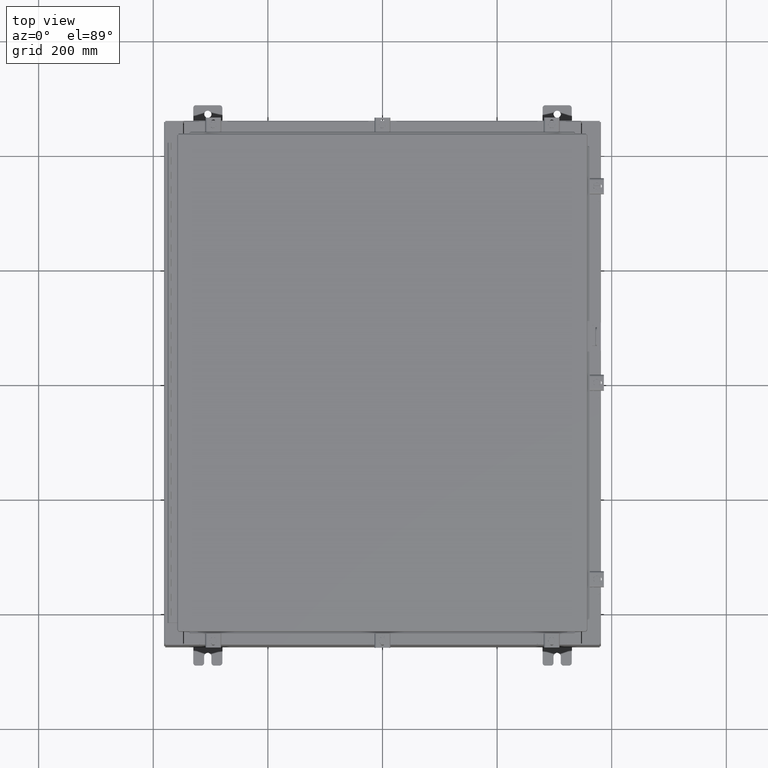
[diagram: clean part render]
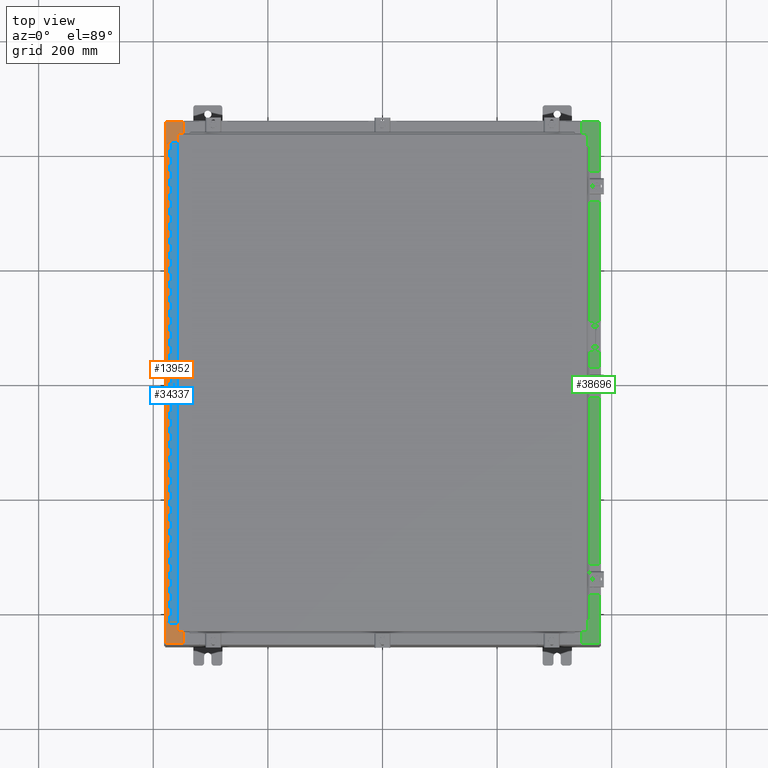
[diagram: same view with three faces highlighted in distinct colors, each labeled with its STEP entity id]
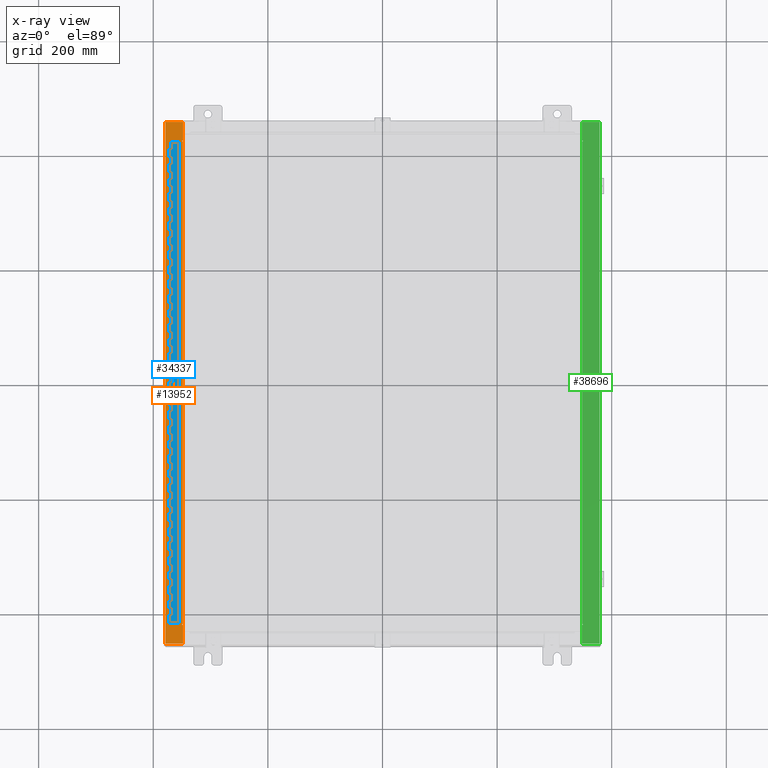
[diagram: x-ray of the same camera — body ghosted, the three highlighted faces saturated]
A machine part, top view with three faces highlighted in distinct colors.
The next image is the same camera in x-ray (body ghosted, the three faces saturated) — at least one of them is partly hidden behind the body in this view.
Their STEP definitions:

[orange] entity #13952 — the highlighted planar face has unit normal (0, 0, -1).
#261 = LINE ( 'NONE', #5243, #42571 ) ;
#730 = VECTOR ( 'NONE', #31000, 39.37007874015748100 ) ;
#746 = FACE_OUTER_BOUND ( 'NONE', #19659, .T. ) ;
#3597 = CARTESIAN_POINT ( 'NONE',  ( -13.75005000000003900, 16.59375000000000000, 9.925300000000007100 ) ) ;
#3869 = ORIENTED_EDGE ( 'NONE', *, *, #19656, .T. ) ;
#4031 = EDGE_CURVE ( 'NONE', #27054, #34025, #33340, .T. ) ;
#4894 = DIRECTION ( 'NONE',  ( -1.000000000000000000, 0.0000000000000000000, 0.0000000000000000000 ) ) ;
#5243 = CARTESIAN_POINT ( 'NONE',  ( -13.69970000000003900, 16.63110000000000400, 9.925300000000007100 ) ) ;
#6008 = LINE ( 'NONE', #14255, #23730 ) ;
#6025 = DIRECTION ( 'NONE',  ( -7.132762385546384700E-015, -0.0000000000000000000, 1.000000000000000000 ) ) ;
#6514 = EDGE_CURVE ( 'NONE', #29280, #29994, #19542, .T. ) ;
#6835 = LINE ( 'NONE', #33778, #41323 ) ;
#7261 = ORIENTED_EDGE ( 'NONE', *, *, #38056, .F. ) ;
#7818 = AXIS2_PLACEMENT_3D ( 'NONE', #31459, #31403, #31320 ) ;
#7879 = EDGE_CURVE ( 'NONE', #29994, #18749, #11121, .T. ) ;
#9246 = ORIENTED_EDGE ( 'NONE', *, *, #41492, .T. ) ;
#9313 = CARTESIAN_POINT ( 'NONE',  ( -13.75005000000003900, -16.63109999999998600, 9.925300000000007100 ) ) ;
#10075 = DIRECTION ( 'NONE',  ( 1.000000000000000000, -8.758115402030108600E-047, 7.132762385546384700E-015 ) ) ;
#10135 = VECTOR ( 'NONE', #24913, 39.37007874015748100 ) ;
#10144 = CARTESIAN_POINT ( 'NONE',  ( -13.69970000000003900, 17.92530000000000000, 9.925300000000007100 ) ) ;
#10395 = CIRCLE ( 'NONE', #41961, 0.01867499999999949400 ) ;
#10808 = ORIENTED_EDGE ( 'NONE', *, *, #4031, .F. ) ;
#10948 = CARTESIAN_POINT ( 'NONE',  ( -7.105562016127585500E-014, -17.92530000000000000, 9.925300000000104800 ) ) ;
#11100 = CARTESIAN_POINT ( 'NONE',  ( -13.71270000000004100, 16.59375000000000000, 9.925300000000007100 ) ) ;
#11121 = LINE ( 'NONE', #14909, #36725 ) ;
#11660 = VECTOR ( 'NONE', #24117, 39.37007874015748100 ) ;
#12168 = CARTESIAN_POINT ( 'NONE',  ( -13.75005000000003900, 16.63110000000000000, 9.925300000000007100 ) ) ;
#12716 = LINE ( 'NONE', #14072, #11660 ) ;
#13105 = ORIENTED_EDGE ( 'NONE', *, *, #29965, .F. ) ;
#13290 = ORIENTED_EDGE ( 'NONE', *, *, #6514, .F. ) ;
#13790 = EDGE_CURVE ( 'NONE', #27054, #32530, #17981, .T. ) ;
#13952 = ADVANCED_FACE ( 'NONE', ( #746 ), #39500, .F. ) ;
#14072 = CARTESIAN_POINT ( 'NONE',  ( -13.75005000000003900, 16.59375000000000000, 9.925300000000007100 ) ) ;
#14105 = DIRECTION ( 'NONE',  ( -1.000000000000000000, -1.087045829762336900E-031, -7.132762385546384700E-015 ) ) ;
#14217 = CARTESIAN_POINT ( 'NONE',  ( -13.69970000000003900, -5.858168245728885200E-030, 9.925300000000007100 ) ) ;
#14255 = CARTESIAN_POINT ( 'NONE',  ( -7.105562016127585500E-014, 17.92530000000000000, 9.925300000000104800 ) ) ;
#14693 = DIRECTION ( 'NONE',  ( 1.000000000000000000, -4.340572780399910900E-014, 0.0000000000000000000 ) ) ;
#14909 = CARTESIAN_POINT ( 'NONE',  ( -13.75005000000003900, -16.63109999999998600, 9.925300000000007100 ) ) ;
#15132 = DIRECTION ( 'NONE',  ( -1.000000000000000000, -4.340572780399910900E-014, 0.0000000000000000000 ) ) ;
#15502 = VERTEX_POINT ( 'NONE', #11100 ) ;
#15654 = VERTEX_POINT ( 'NONE', #3597 ) ;
#15955 = ORIENTED_EDGE ( 'NONE', *, *, #31934, .F. ) ;
#17220 = AXIS2_PLACEMENT_3D ( 'NONE', #39982, #39405, #39357 ) ;
#17497 = ORIENTED_EDGE ( 'NONE', *, *, #38123, .F. ) ;
#17658 = CARTESIAN_POINT ( 'NONE',  ( -14.91230000000003700, -17.92530000000000000, 9.925299999999998200 ) ) ;
#17981 = LINE ( 'NONE', #10948, #24761 ) ;
#18136 = CARTESIAN_POINT ( 'NONE',  ( -13.71270000000004100, -16.59374999999998900, 9.925300000000007100 ) ) ;
#18703 = VERTEX_POINT ( 'NONE', #30252 ) ;
#18749 = VERTEX_POINT ( 'NONE', #30156 ) ;
#19542 = CIRCLE ( 'NONE', #7818, 0.01867499999999949400 ) ;
#19656 = EDGE_CURVE ( 'NONE', #28850, #34025, #6008, .T. ) ;
#19659 = EDGE_LOOP ( 'NONE', ( #17497, #24114, #3869, #10808, #39083, #9246, #42333, #13290, #15955, #7261, #22720, #13105 ) ) ;
#20173 = EDGE_CURVE ( 'NONE', #15654, #15502, #12716, .T. ) ;
#20235 = EDGE_CURVE ( 'NONE', #37372, #28850, #36207, .T. ) ;
#20508 = DIRECTION ( 'NONE',  ( -4.276128853718621600E-031, 1.000000000000000000, -3.050061104355376000E-045 ) ) ;
#21287 = LINE ( 'NONE', #18136, #28056 ) ;
#21548 = CARTESIAN_POINT ( 'NONE',  ( -13.71270000000004100, 16.59374999999999600, 9.925300000000007100 ) ) ;
#22720 = ORIENTED_EDGE ( 'NONE', *, *, #20173, .F. ) ;
#23415 = VECTOR ( 'NONE', #29260, 39.37007874015748100 ) ;
#23730 = VECTOR ( 'NONE', #14105, 39.37007874015748100 ) ;
#24114 = ORIENTED_EDGE ( 'NONE', *, *, #20235, .T. ) ;
#24117 = DIRECTION ( 'NONE',  ( 1.000000000000000000, 0.0000000000000000000, 0.0000000000000000000 ) ) ;
#24761 = VECTOR ( 'NONE', #10075, 39.37007874015748100 ) ;
#24913 = DIRECTION ( 'NONE',  ( -0.0000000000000000000, -1.000000000000000000, -0.0000000000000000000 ) ) ;
#25241 = CARTESIAN_POINT ( 'NONE',  ( -13.69970000000003900, -17.92530000000000000, 9.925300000000007100 ) ) ;
#25964 = CARTESIAN_POINT ( 'NONE',  ( -13.75005000000003900, 16.61242500000000200, 9.925300000000007100 ) ) ;
#27054 = VERTEX_POINT ( 'NONE', #17658 ) ;
#28056 = VECTOR ( 'NONE', #4894, 39.37007874015748100 ) ;
#28850 = VERTEX_POINT ( 'NONE', #10144 ) ;
#28881 = CARTESIAN_POINT ( 'NONE',  ( -14.91230000000003700, 17.92530000000000000, 9.925299999999998200 ) ) ;
#29260 = DIRECTION ( 'NONE',  ( -0.0000000000000000000, 1.000000000000000000, -0.0000000000000000000 ) ) ;
#29280 = VERTEX_POINT ( 'NONE', #39038 ) ;
#29352 = DIRECTION ( 'NONE',  ( 1.000000000000000000, 0.0000000000000000000, 0.0000000000000000000 ) ) ;
#29965 = EDGE_CURVE ( 'NONE', #36947, #15654, #10395, .T. ) ;
#29994 = VERTEX_POINT ( 'NONE', #9313 ) ;
#30156 = CARTESIAN_POINT ( 'NONE',  ( -13.69970000000003900, -16.63109999999998600, 9.925300000000007100 ) ) ;
#30252 = CARTESIAN_POINT ( 'NONE',  ( -13.71270000000004100, -16.59374999999998900, 9.925300000000007100 ) ) ;
#31000 = DIRECTION ( 'NONE',  ( -4.276128853718621600E-031, 1.000000000000000000, -3.050061104355376000E-045 ) ) ;
#31320 = DIRECTION ( 'NONE',  ( 1.000000000000000000, 0.0000000000000000000, 0.0000000000000000000 ) ) ;
#31403 = DIRECTION ( 'NONE',  ( -7.132762385546384700E-015, -0.0000000000000000000, 1.000000000000000000 ) ) ;
#31459 = CARTESIAN_POINT ( 'NONE',  ( -13.75005000000003900, -16.61242499999998800, 9.925300000000007100 ) ) ;
#31934 = EDGE_CURVE ( 'NONE', #18703, #29280, #21287, .T. ) ;
#32530 = VERTEX_POINT ( 'NONE', #25241 ) ;
#33340 = LINE ( 'NONE', #28881, #23415 ) ;
#33778 = CARTESIAN_POINT ( 'NONE',  ( -13.69970000000003900, -5.858168245728885200E-030, 9.925300000000007100 ) ) ;
#34025 = VERTEX_POINT ( 'NONE', #40049 ) ;
#34745 = CARTESIAN_POINT ( 'NONE',  ( -13.69970000000003900, 16.63110000000000400, 9.925300000000007100 ) ) ;
#36207 = LINE ( 'NONE', #14217, #730 ) ;
#36725 = VECTOR ( 'NONE', #14693, 39.37007874015748100 ) ;
#36807 = LINE ( 'NONE', #21548, #10135 ) ;
#36947 = VERTEX_POINT ( 'NONE', #12168 ) ;
#37372 = VERTEX_POINT ( 'NONE', #34745 ) ;
#38056 = EDGE_CURVE ( 'NONE', #15502, #18703, #36807, .T. ) ;
#38123 = EDGE_CURVE ( 'NONE', #37372, #36947, #261, .T. ) ;
#39038 = CARTESIAN_POINT ( 'NONE',  ( -13.75005000000003900, -16.59374999999998900, 9.925300000000007100 ) ) ;
#39083 = ORIENTED_EDGE ( 'NONE', *, *, #13790, .T. ) ;
#39357 = DIRECTION ( 'NONE',  ( -1.000000000000000000, 0.0000000000000000000, -7.132762385546384700E-015 ) ) ;
#39405 = DIRECTION ( 'NONE',  ( 7.132762385546384700E-015, 0.0000000000000000000, -1.000000000000000000 ) ) ;
#39500 = PLANE ( 'NONE',  #17220 ) ;
#39982 = CARTESIAN_POINT ( 'NONE',  ( -7.105562016127585500E-014, 0.0000000000000000000, 9.925300000000104800 ) ) ;
#40049 = CARTESIAN_POINT ( 'NONE',  ( -14.91230000000003700, 17.92530000000000000, 9.925299999999998200 ) ) ;
#41323 = VECTOR ( 'NONE', #20508, 39.37007874015748100 ) ;
#41492 = EDGE_CURVE ( 'NONE', #32530, #18749, #6835, .T. ) ;
#41961 = AXIS2_PLACEMENT_3D ( 'NONE', #25964, #6025, #29352 ) ;
#42333 = ORIENTED_EDGE ( 'NONE', *, *, #7879, .F. ) ;
#42571 = VECTOR ( 'NONE', #15132, 39.37007874015748100 ) ;

[blue] entity #34337 — the highlighted planar face has unit normal (-0, 0, 1).
#22 = CARTESIAN_POINT ( 'NONE',  ( -0.6869999999999982800, 0.5504999999999997700, -5.000000000000000000 ) ) ;
#52 = LINE ( 'NONE', #37842, #17803 ) ;
#61 = ORIENTED_EDGE ( 'NONE', *, *, #16989, .F. ) ;
#84 = VECTOR ( 'NONE', #27652, 39.37007874015748100 ) ;
#164 = ORIENTED_EDGE ( 'NONE', *, *, #29240, .F. ) ;
#182 = EDGE_CURVE ( 'NONE', #35122, #21606, #9558, .T. ) ;
#192 = EDGE_CURVE ( 'NONE', #4063, #19835, #34133, .T. ) ;
#263 = ORIENTED_EDGE ( 'NONE', *, *, #6071, .F. ) ;
#276 = DIRECTION ( 'NONE',  ( -3.389037039080723100E-015, -1.000000000000000000, 0.0000000000000000000 ) ) ;
#303 = CARTESIAN_POINT ( 'NONE',  ( -0.6869999999999982800, 0.5504999999999997700, -29.50000000000000000 ) ) ;
#340 = VECTOR ( 'NONE', #41078, 39.37007874015748100 ) ;
#350 = DIRECTION ( 'NONE',  ( 0.0000000000000000000, 0.0000000000000000000, 1.000000000000000000 ) ) ;
#355 = DIRECTION ( 'NONE',  ( 0.0000000000000000000, 0.0000000000000000000, 1.000000000000000000 ) ) ;
#371 = ORIENTED_EDGE ( 'NONE', *, *, #22347, .F. ) ;
#449 = CARTESIAN_POINT ( 'NONE',  ( -0.6869999999999978300, 0.6754999999999996600, -33.00000000000000000 ) ) ;
#478 = DIRECTION ( 'NONE',  ( 0.0000000000000000000, -0.0000000000000000000, -1.000000000000000000 ) ) ;
#482 = ORIENTED_EDGE ( 'NONE', *, *, #36735, .F. ) ;
#508 = EDGE_CURVE ( 'NONE', #6362, #20194, #7984, .T. ) ;
#511 = LINE ( 'NONE', #41471, #35408 ) ;
#527 = CARTESIAN_POINT ( 'NONE',  ( -0.6869999999999982800, 0.5504999999999997700, -15.50000000000000000 ) ) ;
#544 = VECTOR ( 'NONE', #17631, 39.37007874015748100 ) ;
#555 = EDGE_CURVE ( 'NONE', #33121, #13659, #40397, .T. ) ;
#585 = EDGE_CURVE ( 'NONE', #19419, #9239, #30449, .T. ) ;
#615 = CARTESIAN_POINT ( 'NONE',  ( -0.6869999999999978300, 0.6754999999999996600, -33.00000000000000000 ) ) ;
#706 = CARTESIAN_POINT ( 'NONE',  ( -0.6869999999999978300, 0.6754999999999996600, -33.00000000000000000 ) ) ;
#714 = LINE ( 'NONE', #449, #9526 ) ;
#751 = CARTESIAN_POINT ( 'NONE',  ( -0.6869999999999982800, 0.5504999999999997700, -8.500000000000000000 ) ) ;
#771 = LINE ( 'NONE', #9490, #26311 ) ;
#773 = VECTOR ( 'NONE', #42686, 39.37007874015748100 ) ;
#866 = EDGE_CURVE ( 'NONE', #7558, #41847, #19984, .T. ) ;
#908 = VECTOR ( 'NONE', #22928, 39.37007874015748100 ) ;
#915 = CARTESIAN_POINT ( 'NONE',  ( -0.6869999999999978300, 0.6754999999999996600, -33.00000000000000000 ) ) ;
#924 = CARTESIAN_POINT ( 'NONE',  ( -0.6869999999999978300, 0.6754999999999996600, -31.50000000000000400 ) ) ;
#932 = VERTEX_POINT ( 'NONE', #5974 ) ;
#950 = LINE ( 'NONE', #39473, #35380 ) ;
#976 = CARTESIAN_POINT ( 'NONE',  ( -0.6869999999999982800, 0.5504999999999997700, -1.499999999999999800 ) ) ;
#1045 = DIRECTION ( 'NONE',  ( -3.389037039080723100E-015, -1.000000000000000000, 0.0000000000000000000 ) ) ;
#1064 = DIRECTION ( 'NONE',  ( 0.0000000000000000000, -0.0000000000000000000, -1.000000000000000000 ) ) ;
#1161 = VECTOR ( 'NONE', #2919, 39.37007874015748100 ) ;
#1183 = VERTEX_POINT ( 'NONE', #24115 ) ;
#1212 = EDGE_CURVE ( 'NONE', #19523, #27339, #40852, .T. ) ;
#1330 = EDGE_CURVE ( 'NONE', #9485, #18081, #3250, .T. ) ;
#1337 = CARTESIAN_POINT ( 'NONE',  ( -0.6869999999999973900, 0.8004999999999995500, -30.50000000000000400 ) ) ;
#1347 = CARTESIAN_POINT ( 'NONE',  ( -0.6869999999999978300, 0.6754999999999996600, -18.50000000000000000 ) ) ;
#1382 = EDGE_CURVE ( 'NONE', #25897, #6640, #17846, .T. ) ;
#1450 = VECTOR ( 'NONE', #31845, 39.37007874015748100 ) ;
#1498 = ORIENTED_EDGE ( 'NONE', *, *, #21895, .T. ) ;
#1562 = VECTOR ( 'NONE', #22108, 39.37007874015748100 ) ;
#1765 = CARTESIAN_POINT ( 'NONE',  ( -0.6869999999999973900, 0.8004999999999995500, -6.499999999999999100 ) ) ;
#1858 = EDGE_CURVE ( 'NONE', #10273, #9659, #34518, .T. ) ;
#1990 = ORIENTED_EDGE ( 'NONE', *, *, #42506, .F. ) ;
#1996 = LINE ( 'NONE', #3735, #43235 ) ;
#2001 = CARTESIAN_POINT ( 'NONE',  ( -0.6869999999999982800, 0.5504999999999997700, -29.50000000000000000 ) ) ;
#2043 = ORIENTED_EDGE ( 'NONE', *, *, #37307, .T. ) ;
#2085 = VERTEX_POINT ( 'NONE', #42478 ) ;
#2222 = EDGE_CURVE ( 'NONE', #24486, #31237, #4226, .T. ) ;
#2303 = CARTESIAN_POINT ( 'NONE',  ( -0.6869999999999978300, 0.6754999999999996600, -2.000000000000000000 ) ) ;
#2407 = ORIENTED_EDGE ( 'NONE', *, *, #28395, .F. ) ;
#2548 = DIRECTION ( 'NONE',  ( 3.389037039080723100E-015, 1.000000000000000000, -0.0000000000000000000 ) ) ;
#2572 = DIRECTION ( 'NONE',  ( 0.0000000000000000000, 0.0000000000000000000, 1.000000000000000000 ) ) ;
#2588 = ORIENTED_EDGE ( 'NONE', *, *, #1858, .F. ) ;
#2606 = EDGE_CURVE ( 'NONE', #10216, #9485, #6261, .T. ) ;
#2641 = CARTESIAN_POINT ( 'NONE',  ( -0.6869999999999973900, 0.8004999999999995500, -11.99999999999999800 ) ) ;
#2643 = VERTEX_POINT ( 'NONE', #25725 ) ;
#2678 = EDGE_CURVE ( 'NONE', #37512, #20628, #29749, .T. ) ;
#2716 = ORIENTED_EDGE ( 'NONE', *, *, #866, .F. ) ;
#2750 = ORIENTED_EDGE ( 'NONE', *, *, #20422, .F. ) ;
#2776 = CARTESIAN_POINT ( 'NONE',  ( -0.6869999999999973900, 0.8004999999999995500, -13.50000000000000000 ) ) ;
#2887 = ORIENTED_EDGE ( 'NONE', *, *, #40394, .F. ) ;
#2919 = DIRECTION ( 'NONE',  ( 0.0000000000000000000, -0.0000000000000000000, -1.000000000000000000 ) ) ;
#2942 = LINE ( 'NONE', #25540, #37389 ) ;
#2949 = VERTEX_POINT ( 'NONE', #4846 ) ;
#2952 = VERTEX_POINT ( 'NONE', #4908 ) ;
#3011 = CARTESIAN_POINT ( 'NONE',  ( -0.6869999999999978300, 0.6754999999999996600, -33.00000000000000000 ) ) ;
#3094 = ORIENTED_EDGE ( 'NONE', *, *, #38325, .T. ) ;
#3106 = VERTEX_POINT ( 'NONE', #36243 ) ;
#3119 = VECTOR ( 'NONE', #23020, 39.37007874015748100 ) ;
#3127 = CARTESIAN_POINT ( 'NONE',  ( -0.6869999999999982800, 0.5504999999999997700, -9.500000000000000000 ) ) ;
#3218 = CARTESIAN_POINT ( 'NONE',  ( -0.6869999999999982800, 0.5504999999999997700, -7.000000000000000000 ) ) ;
#3236 = CARTESIAN_POINT ( 'NONE',  ( -0.6869999999999982800, 0.5504999999999997700, -6.499999999999999100 ) ) ;
#3250 = LINE ( 'NONE', #26373, #9973 ) ;
#3305 = ORIENTED_EDGE ( 'NONE', *, *, #192, .F. ) ;
#3335 = VECTOR ( 'NONE', #6856, 39.37007874015748100 ) ;
#3386 = EDGE_CURVE ( 'NONE', #39139, #42959, #13494, .T. ) ;
#3420 = VERTEX_POINT ( 'NONE', #12566 ) ;
#3437 = VECTOR ( 'NONE', #29723, 39.37007874015748100 ) ;
#3460 = CARTESIAN_POINT ( 'NONE',  ( -0.6869999999999978300, 0.6754999999999996600, -24.99999999999999600 ) ) ;
#3570 = CARTESIAN_POINT ( 'NONE',  ( -0.6869999999999982800, 0.5504999999999997700, -31.50000000000000400 ) ) ;
#3696 = CARTESIAN_POINT ( 'NONE',  ( -0.6869999999999978300, 0.6754999999999996600, -2.500000000000000000 ) ) ;
#3699 = EDGE_CURVE ( 'NONE', #6758, #14608, #950, .T. ) ;
#3707 = DIRECTION ( 'NONE',  ( -3.389037039080723100E-015, -1.000000000000000000, 0.0000000000000000000 ) ) ;
#3735 = CARTESIAN_POINT ( 'NONE',  ( -0.6869999999999973900, 0.8004999999999995500, -10.50000000000000000 ) ) ;
#3786 = CARTESIAN_POINT ( 'NONE',  ( -0.6869999999999978300, 0.6754999999999996600, -21.00000000000000000 ) ) ;
#3939 = VERTEX_POINT ( 'NONE', #32796 ) ;
#3952 = DIRECTION ( 'NONE',  ( 0.0000000000000000000, 0.0000000000000000000, 1.000000000000000000 ) ) ;
#4012 = ORIENTED_EDGE ( 'NONE', *, *, #34815, .F. ) ;
#4035 = DIRECTION ( 'NONE',  ( 0.0000000000000000000, -0.0000000000000000000, -1.000000000000000000 ) ) ;
#4063 = VERTEX_POINT ( 'NONE', #27613 ) ;
#4098 = VECTOR ( 'NONE', #10730, 39.37007874015748100 ) ;
#4102 = ORIENTED_EDGE ( 'NONE', *, *, #30543, .T. ) ;
#4116 = DIRECTION ( 'NONE',  ( 3.389037039080723100E-015, 1.000000000000000000, -0.0000000000000000000 ) ) ;
#4141 = VECTOR ( 'NONE', #276, 39.37007874015748100 ) ;
#4169 = DIRECTION ( 'NONE',  ( 0.0000000000000000000, 0.0000000000000000000, 1.000000000000000000 ) ) ;
#4207 = EDGE_CURVE ( 'NONE', #4535, #15223, #33845, .T. ) ;
#4226 = LINE ( 'NONE', #18573, #29791 ) ;
#4298 = EDGE_CURVE ( 'NONE', #28039, #35122, #37989, .T. ) ;
#4309 = VECTOR ( 'NONE', #14676, 39.37007874015748100 ) ;
#4450 = LINE ( 'NONE', #33193, #30008 ) ;
#4535 = VERTEX_POINT ( 'NONE', #17372 ) ;
#4552 = LINE ( 'NONE', #20630, #13410 ) ;
#4612 = CARTESIAN_POINT ( 'NONE',  ( -0.6869999999999982800, 0.5504999999999997700, -27.50000000000000000 ) ) ;
#4691 = VECTOR ( 'NONE', #3707, 39.37007874015748100 ) ;
#4838 = CARTESIAN_POINT ( 'NONE',  ( -0.6869999999999973900, 0.8004999999999995500, -22.00000000000000000 ) ) ;
#4846 = CARTESIAN_POINT ( 'NONE',  ( -0.6869999999999982800, 0.5504999999999997700, -31.00000000000000000 ) ) ;
#4854 = VECTOR ( 'NONE', #14466, 39.37007874015748100 ) ;
#4908 = CARTESIAN_POINT ( 'NONE',  ( -0.6869999999999982800, 0.5504999999999997700, -2.000000000000000000 ) ) ;
#4982 = CARTESIAN_POINT ( 'NONE',  ( -0.6869999999999982800, 0.5504999999999997700, -16.50000000000000000 ) ) ;
#5008 = LINE ( 'NONE', #19368, #19589 ) ;
#5009 = CARTESIAN_POINT ( 'NONE',  ( -0.6869999999999978300, 0.6754999999999996600, -33.00000000000000000 ) ) ;
#5014 = ORIENTED_EDGE ( 'NONE', *, *, #26404, .F. ) ;
#5031 = VERTEX_POINT ( 'NONE', #6316 ) ;
#5087 = VECTOR ( 'NONE', #5940, 39.37007874015748100 ) ;
#5101 = EDGE_CURVE ( 'NONE', #38789, #42109, #36356, .T. ) ;
#5140 = LINE ( 'NONE', #34127, #4098 ) ;
#5248 = DIRECTION ( 'NONE',  ( 0.0000000000000000000, -0.0000000000000000000, -1.000000000000000000 ) ) ;
#5303 = VECTOR ( 'NONE', #7204, 39.37007874015748100 ) ;
#5316 = EDGE_CURVE ( 'NONE', #8605, #37512, #35824, .T. ) ;
#5405 = LINE ( 'NONE', #20847, #38795 ) ;
#5442 = CARTESIAN_POINT ( 'NONE',  ( -0.6869999999999978300, 0.6754999999999996600, -27.50000000000000000 ) ) ;
#5643 = CARTESIAN_POINT ( 'NONE',  ( -0.6869999999999982800, 0.5504999999999997700, -27.50000000000000000 ) ) ;
#5677 = VECTOR ( 'NONE', #34348, 39.37007874015748100 ) ;
#5689 = LINE ( 'NONE', #1337, #24473 ) ;
#5758 = VERTEX_POINT ( 'NONE', #28741 ) ;
#5764 = VECTOR ( 'NONE', #10331, 39.37007874015748100 ) ;
#5780 = CARTESIAN_POINT ( 'NONE',  ( -0.6869999999999982800, 0.5504999999999997700, -22.00000000000000000 ) ) ;
#5873 = VERTEX_POINT ( 'NONE', #18734 ) ;
#5888 = VERTEX_POINT ( 'NONE', #16256 ) ;
#5896 = LINE ( 'NONE', #11074, #4854 ) ;
#5897 = ORIENTED_EDGE ( 'NONE', *, *, #39533, .F. ) ;
#5940 = DIRECTION ( 'NONE',  ( 3.389037039080723100E-015, 1.000000000000000000, -0.0000000000000000000 ) ) ;
#5974 = CARTESIAN_POINT ( 'NONE',  ( -0.6869999999999982800, 0.5504999999999997700, -24.50000000000000000 ) ) ;
#6067 = DIRECTION ( 'NONE',  ( 0.0000000000000000000, -0.0000000000000000000, -1.000000000000000000 ) ) ;
#6071 = EDGE_CURVE ( 'NONE', #16595, #20078, #16457, .T. ) ;
#6074 = EDGE_CURVE ( 'NONE', #11519, #39066, #7541, .T. ) ;
#6135 = EDGE_CURVE ( 'NONE', #8765, #42109, #39945, .T. ) ;
#6140 = CARTESIAN_POINT ( 'NONE',  ( -0.6869999999999982800, 0.5504999999999997700, -26.50000000000000400 ) ) ;
#6167 = CARTESIAN_POINT ( 'NONE',  ( -0.6869999999999978300, 0.6754999999999996600, -12.49999999999999800 ) ) ;
#6180 = VECTOR ( 'NONE', #3952, 39.37007874015748100 ) ;
#6201 = DIRECTION ( 'NONE',  ( 0.0000000000000000000, 0.0000000000000000000, 1.000000000000000000 ) ) ;
#6222 = CARTESIAN_POINT ( 'NONE',  ( -0.6869999999999978300, 0.6754999999999996600, -17.50000000000000000 ) ) ;
#6227 = VECTOR ( 'NONE', #9708, 39.37007874015748100 ) ;
#6261 = LINE ( 'NONE', #30126, #40732 ) ;
#6315 = VERTEX_POINT ( 'NONE', #5442 ) ;
#6316 = CARTESIAN_POINT ( 'NONE',  ( -0.6869999999999978300, 0.6754999999999996600, -16.50000000000000000 ) ) ;
#6322 = CARTESIAN_POINT ( 'NONE',  ( -0.6869999999999982800, 0.5504999999999997700, -7.499999999999999100 ) ) ;
#6362 = VERTEX_POINT ( 'NONE', #42117 ) ;
#6382 = CARTESIAN_POINT ( 'NONE',  ( -0.6869999999999982800, 0.5504999999999997700, -12.49999999999999800 ) ) ;
#6392 = VECTOR ( 'NONE', #42350, 39.37007874015748100 ) ;
#6460 = CARTESIAN_POINT ( 'NONE',  ( -0.6869999999999978300, 0.6754999999999996600, -12.99999999999999800 ) ) ;
#6463 = VECTOR ( 'NONE', #26540, 39.37007874015748100 ) ;
#6488 = DIRECTION ( 'NONE',  ( 0.0000000000000000000, 0.0000000000000000000, 1.000000000000000000 ) ) ;
#6533 = ORIENTED_EDGE ( 'NONE', *, *, #28401, .F. ) ;
#6538 = VECTOR ( 'NONE', #5248, 39.37007874015748100 ) ;
#6559 = VECTOR ( 'NONE', #6901, 39.37007874015748100 ) ;
#6640 = VERTEX_POINT ( 'NONE', #20523 ) ;
#6657 = ORIENTED_EDGE ( 'NONE', *, *, #21898, .F. ) ;
#6758 = VERTEX_POINT ( 'NONE', #12454 ) ;
#6793 = VECTOR ( 'NONE', #350, 39.37007874015748100 ) ;
#6832 = VECTOR ( 'NONE', #9092, 39.37007874015748100 ) ;
#6856 = DIRECTION ( 'NONE',  ( 0.0000000000000000000, -0.0000000000000000000, -1.000000000000000000 ) ) ;
#6868 = EDGE_CURVE ( 'NONE', #23672, #18081, #14817, .T. ) ;
#6884 = ORIENTED_EDGE ( 'NONE', *, *, #10671, .F. ) ;
#6901 = DIRECTION ( 'NONE',  ( 0.0000000000000000000, 0.0000000000000000000, 1.000000000000000000 ) ) ;
#6910 = CARTESIAN_POINT ( 'NONE',  ( -0.6869999999999978300, 0.6754999999999996600, -33.00000000000000000 ) ) ;
#6918 = VERTEX_POINT ( 'NONE', #751 ) ;
#6922 = ORIENTED_EDGE ( 'NONE', *, *, #42961, .T. ) ;
#7029 = DIRECTION ( 'NONE',  ( -3.389037039080723100E-015, -1.000000000000000000, 0.0000000000000000000 ) ) ;
#7032 = VERTEX_POINT ( 'NONE', #32128 ) ;
#7121 = LINE ( 'NONE', #28516, #41619 ) ;
#7125 = CARTESIAN_POINT ( 'NONE',  ( -0.6869999999999998300, 0.07549999999999991400, -33.00000000000000000 ) ) ;
#7176 = CARTESIAN_POINT ( 'NONE',  ( -0.6869999999999982800, 0.5504999999999997700, -19.50000000000000000 ) ) ;
#7204 = DIRECTION ( 'NONE',  ( 0.0000000000000000000, 0.0000000000000000000, 1.000000000000000000 ) ) ;
#7234 = EDGE_CURVE ( 'NONE', #39139, #19906, #8534, .T. ) ;
#7378 = EDGE_CURVE ( 'NONE', #11544, #14292, #21104, .T. ) ;
#7405 = DIRECTION ( 'NONE',  ( -3.389037039080723100E-015, -1.000000000000000000, 0.0000000000000000000 ) ) ;
#7541 = LINE ( 'NONE', #3127, #6538 ) ;
#7558 = VERTEX_POINT ( 'NONE', #29839 ) ;
#7564 = EDGE_CURVE ( 'NONE', #5031, #11741, #14824, .T. ) ;
#7723 = VERTEX_POINT ( 'NONE', #21050 ) ;
#7725 = VECTOR ( 'NONE', #20869, 39.37007874015748100 ) ;
#7745 = VERTEX_POINT ( 'NONE', #19616 ) ;
#7777 = ORIENTED_EDGE ( 'NONE', *, *, #26353, .F. ) ;
#7788 = AXIS2_PLACEMENT_3D ( 'NONE', #34893, #8042, #18253 ) ;
#7794 = ORIENTED_EDGE ( 'NONE', *, *, #17606, .F. ) ;
#7951 = VECTOR ( 'NONE', #37947, 39.37007874015748100 ) ;
#7984 = LINE ( 'NONE', #41083, #41454 ) ;
#7991 = ORIENTED_EDGE ( 'NONE', *, *, #8693, .F. ) ;
#8042 = DIRECTION ( 'NONE',  ( 1.000000000000000000, -3.369016658928398200E-015, 0.0000000000000000000 ) ) ;
#8094 = ORIENTED_EDGE ( 'NONE', *, *, #7378, .F. ) ;
#8121 = VECTOR ( 'NONE', #24340, 39.37007874015748100 ) ;
#8165 = ORIENTED_EDGE ( 'NONE', *, *, #18758, .F. ) ;
#8193 = EDGE_CURVE ( 'NONE', #4063, #41847, #18407, .T. ) ;
#8382 = VERTEX_POINT ( 'NONE', #32921 ) ;
#8405 = VERTEX_POINT ( 'NONE', #30786 ) ;
#8508 = VECTOR ( 'NONE', #41910, 39.37007874015748100 ) ;
#8534 = LINE ( 'NONE', #8652, #34162 ) ;
#8582 = VERTEX_POINT ( 'NONE', #20367 ) ;
#8605 = VERTEX_POINT ( 'NONE', #20037 ) ;
#8636 = EDGE_CURVE ( 'NONE', #16151, #10273, #32974, .T. ) ;
#8646 = VECTOR ( 'NONE', #23862, 39.37007874015748100 ) ;
#8652 = CARTESIAN_POINT ( 'NONE',  ( -0.6869999999999973900, 0.8004999999999995500, -31.50000000000000400 ) ) ;
#8670 = VERTEX_POINT ( 'NONE', #16119 ) ;
#8685 = EDGE_CURVE ( 'NONE', #1183, #22517, #15233, .T. ) ;
#8693 = EDGE_CURVE ( 'NONE', #28550, #8405, #25153, .T. ) ;
#8730 = ORIENTED_EDGE ( 'NONE', *, *, #37316, .F. ) ;
#8731 = VERTEX_POINT ( 'NONE', #10940 ) ;
#8736 = ORIENTED_EDGE ( 'NONE', *, *, #23216, .F. ) ;
#8751 = CARTESIAN_POINT ( 'NONE',  ( -0.6869999999999973900, 0.8004999999999995500, -14.99999999999999800 ) ) ;
#8756 = LINE ( 'NONE', #6140, #42227 ) ;
#8765 = VERTEX_POINT ( 'NONE', #10267 ) ;
#8826 = VECTOR ( 'NONE', #11852, 39.37007874015748100 ) ;
#8830 = CARTESIAN_POINT ( 'NONE',  ( -0.6869999999999978300, 0.6754999999999996600, -29.50000000000000000 ) ) ;
#8852 = ORIENTED_EDGE ( 'NONE', *, *, #13129, .F. ) ;
#9003 = EDGE_CURVE ( 'NONE', #8765, #28550, #10468, .T. ) ;
#9040 = CARTESIAN_POINT ( 'NONE',  ( -0.6869999999999973900, 0.8004999999999995500, -11.50000000000000000 ) ) ;
#9092 = DIRECTION ( 'NONE',  ( 0.0000000000000000000, -0.0000000000000000000, -1.000000000000000000 ) ) ;
#9126 = DIRECTION ( 'NONE',  ( -3.389037039080723100E-015, -1.000000000000000000, 0.0000000000000000000 ) ) ;
#9143 = LINE ( 'NONE', #24182, #8121 ) ;
#9167 = LINE ( 'NONE', #11122, #340 ) ;
#9210 = DIRECTION ( 'NONE',  ( 3.389037039080723100E-015, 1.000000000000000000, -0.0000000000000000000 ) ) ;
#9232 = CARTESIAN_POINT ( 'NONE',  ( -0.6869999999999973900, 0.8004999999999995500, -16.00000000000000000 ) ) ;
#9239 = VERTEX_POINT ( 'NONE', #37064 ) ;
#9292 = VECTOR ( 'NONE', #29268, 39.37007874015748100 ) ;
#9300 = VECTOR ( 'NONE', #14344, 39.37007874015748100 ) ;
#9393 = DIRECTION ( 'NONE',  ( -3.389037039080723100E-015, -1.000000000000000000, 0.0000000000000000000 ) ) ;
#9425 = DIRECTION ( 'NONE',  ( -3.389037039080723100E-015, -1.000000000000000000, 0.0000000000000000000 ) ) ;
#9432 = DIRECTION ( 'NONE',  ( 0.0000000000000000000, 0.0000000000000000000, 1.000000000000000000 ) ) ;
#9485 = VERTEX_POINT ( 'NONE', #32257 ) ;
#9490 = CARTESIAN_POINT ( 'NONE',  ( -0.6869999999999973900, 0.8004999999999995500, -12.99999999999999800 ) ) ;
#9518 = ORIENTED_EDGE ( 'NONE', *, *, #34727, .T. ) ;
#9524 = DIRECTION ( 'NONE',  ( 3.389037039080723100E-015, 1.000000000000000000, -0.0000000000000000000 ) ) ;
#9526 = VECTOR ( 'NONE', #33699, 39.37007874015748100 ) ;
#9558 = LINE ( 'NONE', #6322, #8508 ) ;
#9601 = LINE ( 'NONE', #19304, #773 ) ;
#9611 = DIRECTION ( 'NONE',  ( 3.389037039080723100E-015, 1.000000000000000000, -0.0000000000000000000 ) ) ;
#9618 = CARTESIAN_POINT ( 'NONE',  ( -0.6869999999999973900, 0.8004999999999995500, -17.00000000000000000 ) ) ;
#9659 = VERTEX_POINT ( 'NONE', #28698 ) ;
#9671 = CARTESIAN_POINT ( 'NONE',  ( -0.6869999999999982800, 0.5504999999999997700, -8.000000000000000000 ) ) ;
#9708 = DIRECTION ( 'NONE',  ( 0.0000000000000000000, 0.0000000000000000000, 1.000000000000000000 ) ) ;
#9780 = EDGE_CURVE ( 'NONE', #5031, #29548, #15682, .T. ) ;
#9798 = CARTESIAN_POINT ( 'NONE',  ( -0.6869999999999978300, 0.6754999999999996600, -28.50000000000000000 ) ) ;
#9814 = VERTEX_POINT ( 'NONE', #24051 ) ;
#9819 = CARTESIAN_POINT ( 'NONE',  ( -0.6869999999999982800, 0.5504999999999997700, -2.500000000000000000 ) ) ;
#9821 = VERTEX_POINT ( 'NONE', #24293 ) ;
#9911 = EDGE_CURVE ( 'NONE', #13428, #17489, #10386, .T. ) ;
#9942 = CARTESIAN_POINT ( 'NONE',  ( -0.6869999999999982800, 0.5504999999999997700, -32.50000000000000000 ) ) ;
#9944 = VECTOR ( 'NONE', #9432, 39.37007874015748100 ) ;
#9973 = VECTOR ( 'NONE', #40903, 39.37007874015748100 ) ;
#10080 = CARTESIAN_POINT ( 'NONE',  ( -0.6869999999999982800, 0.5504999999999997700, -9.000000000000000000 ) ) ;
#10105 = CARTESIAN_POINT ( 'NONE',  ( -0.6869999999999978300, 0.6754999999999996600, -11.99999999999999800 ) ) ;
#10119 = ORIENTED_EDGE ( 'NONE', *, *, #4298, .F. ) ;
#10129 = CARTESIAN_POINT ( 'NONE',  ( -0.6869999999999982800, 0.5504999999999997700, -31.50000000000000400 ) ) ;
#10161 = CARTESIAN_POINT ( 'NONE',  ( -0.6869999999999978300, 0.6754999999999996600, -33.00000000000000000 ) ) ;
#10216 = VERTEX_POINT ( 'NONE', #15787 ) ;
#10267 = CARTESIAN_POINT ( 'NONE',  ( -0.6869999999999978300, 0.6754999999999996600, -22.50000000000000000 ) ) ;
#10273 = VERTEX_POINT ( 'NONE', #14727 ) ;
#10331 = DIRECTION ( 'NONE',  ( 3.389037039080723100E-015, 1.000000000000000000, -0.0000000000000000000 ) ) ;
#10386 = LINE ( 'NONE', #22254, #1562 ) ;
#10468 = LINE ( 'NONE', #41744, #19383 ) ;
#10501 = ORIENTED_EDGE ( 'NONE', *, *, #18353, .F. ) ;
#10597 = CARTESIAN_POINT ( 'NONE',  ( -0.6869999999999978300, 0.6754999999999996600, -23.00000000000000000 ) ) ;
#10636 = LINE ( 'NONE', #16160, #12760 ) ;
#10671 = EDGE_CURVE ( 'NONE', #13740, #21087, #8756, .T. ) ;
#10720 = CARTESIAN_POINT ( 'NONE',  ( -0.6869999999999978300, 0.6754999999999996600, -25.50000000000000400 ) ) ;
#10730 = DIRECTION ( 'NONE',  ( 0.0000000000000000000, 0.0000000000000000000, 1.000000000000000000 ) ) ;
#10751 = VECTOR ( 'NONE', #29702, 39.37007874015748100 ) ;
#10763 = LINE ( 'NONE', #35904, #27508 ) ;
#10774 = DIRECTION ( 'NONE',  ( 3.389037039080723100E-015, 1.000000000000000000, -0.0000000000000000000 ) ) ;
#10794 = LINE ( 'NONE', #20537, #11863 ) ;
#10804 = VECTOR ( 'NONE', #19439, 39.37007874015748100 ) ;
#10820 = ORIENTED_EDGE ( 'NONE', *, *, #9911, .F. ) ;
#10850 = CARTESIAN_POINT ( 'NONE',  ( -0.6869999999999973900, 0.8004999999999995500, -2.500000000000000000 ) ) ;
#10940 = CARTESIAN_POINT ( 'NONE',  ( -0.6869999999999982800, 0.5504999999999997700, -17.50000000000000000 ) ) ;
#11025 = ORIENTED_EDGE ( 'NONE', *, *, #8193, .T. ) ;
#11035 = VECTOR ( 'NONE', #24901, 39.37007874015748100 ) ;
#11074 = CARTESIAN_POINT ( 'NONE',  ( -0.6869999999999973900, 0.8004999999999995500, -3.500000000000000000 ) ) ;
#11122 = CARTESIAN_POINT ( 'NONE',  ( -0.6869999999999978300, 0.6754999999999996600, -33.00000000000000000 ) ) ;
#11127 = VECTOR ( 'NONE', #14006, 39.37007874015748100 ) ;
#11225 = LINE ( 'NONE', #9819, #3437 ) ;
#11237 = CARTESIAN_POINT ( 'NONE',  ( -0.6869999999999982800, 0.5504999999999997700, -30.50000000000000400 ) ) ;
#11247 = VERTEX_POINT ( 'NONE', #28273 ) ;
#11266 = EDGE_CURVE ( 'NONE', #21087, #12625, #29152, .T. ) ;
#11302 = VECTOR ( 'NONE', #14479, 39.37007874015748100 ) ;
#11362 = ORIENTED_EDGE ( 'NONE', *, *, #24823, .F. ) ;
#11519 = VERTEX_POINT ( 'NONE', #12453 ) ;
#11529 = PLANE ( 'NONE',  #7788 ) ;
#11544 = VERTEX_POINT ( 'NONE', #9942 ) ;
#11607 = DIRECTION ( 'NONE',  ( 3.389037039080723100E-015, 1.000000000000000000, -0.0000000000000000000 ) ) ;
#11741 = VERTEX_POINT ( 'NONE', #43083 ) ;
#11799 = ORIENTED_EDGE ( 'NONE', *, *, #1212, .F. ) ;
#11835 = CARTESIAN_POINT ( 'NONE',  ( -0.6869999999999973900, 0.8004999999999995500, -10.00000000000000000 ) ) ;
#11852 = DIRECTION ( 'NONE',  ( -3.389037039080723100E-015, -1.000000000000000000, 0.0000000000000000000 ) ) ;
#11863 = VECTOR ( 'NONE', #40552, 39.37007874015748100 ) ;
#12048 = EDGE_CURVE ( 'NONE', #35427, #9821, #10763, .T. ) ;
#12055 = CARTESIAN_POINT ( 'NONE',  ( -0.6869999999999973900, 0.8004999999999995500, -26.50000000000000400 ) ) ;
#12062 = ORIENTED_EDGE ( 'NONE', *, *, #12373, .F. ) ;
#12077 = VERTEX_POINT ( 'NONE', #35330 ) ;
#12116 = DIRECTION ( 'NONE',  ( 3.389037039080723100E-015, 1.000000000000000000, -0.0000000000000000000 ) ) ;
#12143 = LINE ( 'NONE', #10129, #27803 ) ;
#12165 = CARTESIAN_POINT ( 'NONE',  ( -0.6869999999999978300, 0.6754999999999996600, -28.99999999999999600 ) ) ;
#12229 = CARTESIAN_POINT ( 'NONE',  ( -0.6869999999999978300, 0.6754999999999996600, -32.00000000000000000 ) ) ;
#12235 = VERTEX_POINT ( 'NONE', #30986 ) ;
#12314 = CARTESIAN_POINT ( 'NONE',  ( -0.6869999999999978300, 0.6754999999999996600, -33.00000000000000000 ) ) ;
#12373 = EDGE_CURVE ( 'NONE', #932, #5888, #7121, .T. ) ;
#12453 = CARTESIAN_POINT ( 'NONE',  ( -0.6869999999999982800, 0.5504999999999997700, -9.500000000000000000 ) ) ;
#12454 = CARTESIAN_POINT ( 'NONE',  ( -0.6869999999999978300, 0.6754999999999996600, -14.49999999999999800 ) ) ;
#12481 = CARTESIAN_POINT ( 'NONE',  ( -0.6869999999999978300, 0.6754999999999996600, -28.00000000000000000 ) ) ;
#12496 = CARTESIAN_POINT ( 'NONE',  ( -0.6869999999999978300, 0.6754999999999996600, -14.00000000000000000 ) ) ;
#12541 = CARTESIAN_POINT ( 'NONE',  ( -0.6869999999999978300, 0.6754999999999996600, -31.00000000000000000 ) ) ;
#12547 = CARTESIAN_POINT ( 'NONE',  ( -0.6869999999999978300, 0.6754999999999996600, -11.00000000000000000 ) ) ;
#12566 = CARTESIAN_POINT ( 'NONE',  ( -0.6869999999999978300, 0.6754999999999996600, -8.500000000000000000 ) ) ;
#12572 = EDGE_CURVE ( 'NONE', #9659, #9821, #35290, .T. ) ;
#12625 = VERTEX_POINT ( 'NONE', #22401 ) ;
#12628 = ORIENTED_EDGE ( 'NONE', *, *, #9003, .F. ) ;
#12639 = VECTOR ( 'NONE', #14679, 39.37007874015748100 ) ;
#12700 = ORIENTED_EDGE ( 'NONE', *, *, #38311, .F. ) ;
#12739 = VERTEX_POINT ( 'NONE', #19853 ) ;
#12760 = VECTOR ( 'NONE', #39496, 39.37007874015748100 ) ;
#12761 = CARTESIAN_POINT ( 'NONE',  ( -0.6869999999999982800, 0.5504999999999997700, -11.50000000000000000 ) ) ;
#12775 = DIRECTION ( 'NONE',  ( 0.0000000000000000000, 0.0000000000000000000, 1.000000000000000000 ) ) ;
#12810 = ORIENTED_EDGE ( 'NONE', *, *, #1330, .F. ) ;
#12856 = CARTESIAN_POINT ( 'NONE',  ( -0.6869999999999982800, 0.5504999999999997700, -18.50000000000000000 ) ) ;
#12901 = DIRECTION ( 'NONE',  ( -3.389037039080723100E-015, -1.000000000000000000, 0.0000000000000000000 ) ) ;
#12923 = ORIENTED_EDGE ( 'NONE', *, *, #7234, .F. ) ;
#13056 = CARTESIAN_POINT ( 'NONE',  ( -0.6869999999999973900, 0.8004999999999995500, -25.50000000000000400 ) ) ;
#13101 = LINE ( 'NONE', #40513, #5303 ) ;
#13103 = CARTESIAN_POINT ( 'NONE',  ( -0.6869999999999978300, 0.6754999999999996600, -33.00000000000000000 ) ) ;
#13124 = ORIENTED_EDGE ( 'NONE', *, *, #40319, .F. ) ;
#13129 = EDGE_CURVE ( 'NONE', #2085, #31512, #36302, .T. ) ;
#13259 = FACE_OUTER_BOUND ( 'NONE', #38241, .T. ) ;
#13266 = EDGE_CURVE ( 'NONE', #24946, #22951, #19071, .T. ) ;
#13317 = VECTOR ( 'NONE', #40241, 39.37007874015748100 ) ;
#13410 = VECTOR ( 'NONE', #30695, 39.37007874015748100 ) ;
#13428 = VERTEX_POINT ( 'NONE', #3236 ) ;
#13494 = LINE ( 'NONE', #15008, #39074 ) ;
#13521 = DIRECTION ( 'NONE',  ( 0.0000000000000000000, -0.0000000000000000000, -1.000000000000000000 ) ) ;
#13570 = LINE ( 'NONE', #615, #39154 ) ;
#13587 = ORIENTED_EDGE ( 'NONE', *, *, #32196, .F. ) ;
#13599 = EDGE_CURVE ( 'NONE', #6918, #38996, #4450, .T. ) ;
#13602 = VECTOR ( 'NONE', #1064, 39.37007874015748100 ) ;
#13615 = CARTESIAN_POINT ( 'NONE',  ( -0.6869999999999973900, 0.8004999999999995500, -32.00000000000000000 ) ) ;
#13632 = ORIENTED_EDGE ( 'NONE', *, *, #38972, .F. ) ;
#13649 = DIRECTION ( 'NONE',  ( 0.0000000000000000000, -0.0000000000000000000, -1.000000000000000000 ) ) ;
#13659 = VERTEX_POINT ( 'NONE', #27597 ) ;
#13690 = LINE ( 'NONE', #37997, #12639 ) ;
#13740 = VERTEX_POINT ( 'NONE', #20894 ) ;
#13768 = VECTOR ( 'NONE', #6201, 39.37007874015748100 ) ;
#13909 = VERTEX_POINT ( 'NONE', #41925 ) ;
#14006 = DIRECTION ( 'NONE',  ( 0.0000000000000000000, 0.0000000000000000000, 1.000000000000000000 ) ) ;
#14117 = CARTESIAN_POINT ( 'NONE',  ( -0.6869999999999978300, 0.6754999999999996600, -24.50000000000000000 ) ) ;
#14287 = LINE ( 'NONE', #30111, #39871 ) ;
#14292 = VERTEX_POINT ( 'NONE', #25250 ) ;
#14296 = DIRECTION ( 'NONE',  ( 0.0000000000000000000, 0.0000000000000000000, 1.000000000000000000 ) ) ;
#14338 = DIRECTION ( 'NONE',  ( 0.0000000000000000000, 0.0000000000000000000, 1.000000000000000000 ) ) ;
#14344 = DIRECTION ( 'NONE',  ( 0.0000000000000000000, 0.0000000000000000000, 1.000000000000000000 ) ) ;
#14466 = DIRECTION ( 'NONE',  ( -3.389037039080723100E-015, -1.000000000000000000, 0.0000000000000000000 ) ) ;
#14479 = DIRECTION ( 'NONE',  ( -3.389037039080723100E-015, -1.000000000000000000, 0.0000000000000000000 ) ) ;
#14482 = CARTESIAN_POINT ( 'NONE',  ( -0.6869999999999982800, 0.5504999999999997700, -22.50000000000000000 ) ) ;
#14590 = LINE ( 'NONE', #13615, #23446 ) ;
#14608 = VERTEX_POINT ( 'NONE', #12496 ) ;
#14630 = LINE ( 'NONE', #40303, #5764 ) ;
#14658 = DIRECTION ( 'NONE',  ( 0.0000000000000000000, -0.0000000000000000000, -1.000000000000000000 ) ) ;
#14660 = VERTEX_POINT ( 'NONE', #10597 ) ;
#14676 = DIRECTION ( 'NONE',  ( 0.0000000000000000000, -0.0000000000000000000, -1.000000000000000000 ) ) ;
#14679 = DIRECTION ( 'NONE',  ( 3.389037039080723100E-015, 1.000000000000000000, -0.0000000000000000000 ) ) ;
#14727 = CARTESIAN_POINT ( 'NONE',  ( -0.6869999999999982800, 0.5504999999999997700, -5.500000000000000000 ) ) ;
#14817 = LINE ( 'NONE', #5009, #13768 ) ;
#14824 = LINE ( 'NONE', #29012, #38296 ) ;
#14842 = CARTESIAN_POINT ( 'NONE',  ( -0.6869999999999982800, 0.5504999999999997700, -13.50000000000000000 ) ) ;
#14921 = EDGE_CURVE ( 'NONE', #30661, #35474, #15259, .T. ) ;
#14953 = DIRECTION ( 'NONE',  ( 0.0000000000000000000, -0.0000000000000000000, -1.000000000000000000 ) ) ;
#14958 = LINE ( 'NONE', #42061, #23834 ) ;
#14998 = ORIENTED_EDGE ( 'NONE', *, *, #32010, .F. ) ;
#15008 = CARTESIAN_POINT ( 'NONE',  ( -0.6869999999999978300, 0.6754999999999996600, -33.00000000000000000 ) ) ;
#15028 = LINE ( 'NONE', #7125, #6180 ) ;
#15068 = VECTOR ( 'NONE', #39622, 39.37007874015748100 ) ;
#15088 = CARTESIAN_POINT ( 'NONE',  ( -0.6869999999999973900, 0.8004999999999995500, -21.50000000000000400 ) ) ;
#15119 = LINE ( 'NONE', #34892, #23983 ) ;
#15166 = CARTESIAN_POINT ( 'NONE',  ( -0.6869999999999982800, 0.5504999999999997700, -5.500000000000000000 ) ) ;
#15223 = VERTEX_POINT ( 'NONE', #26281 ) ;
#15233 = LINE ( 'NONE', #15088, #39777 ) ;
#15235 = VECTOR ( 'NONE', #19032, 39.37007874015748100 ) ;
#15259 = LINE ( 'NONE', #42632, #6392 ) ;
#15372 = VECTOR ( 'NONE', #29534, 39.37007874015748100 ) ;
#15388 = VERTEX_POINT ( 'NONE', #17122 ) ;
#15435 = VECTOR ( 'NONE', #9611, 39.37007874015748100 ) ;
#15477 = DIRECTION ( 'NONE',  ( 0.0000000000000000000, 0.0000000000000000000, 1.000000000000000000 ) ) ;
#15493 = ORIENTED_EDGE ( 'NONE', *, *, #24448, .F. ) ;
#15519 = EDGE_CURVE ( 'NONE', #1183, #30654, #19907, .T. ) ;
#15557 = ORIENTED_EDGE ( 'NONE', *, *, #19021, .T. ) ;
#15600 = DIRECTION ( 'NONE',  ( -3.389037039080723100E-015, -1.000000000000000000, 0.0000000000000000000 ) ) ;
#15644 = VERTEX_POINT ( 'NONE', #3696 ) ;
#15682 = LINE ( 'NONE', #24967, #41275 ) ;
#15715 = ORIENTED_EDGE ( 'NONE', *, *, #1382, .F. ) ;
#15743 = CARTESIAN_POINT ( 'NONE',  ( -0.6869999999999978300, 0.6754999999999996600, -33.00000000000000000 ) ) ;
#15787 = CARTESIAN_POINT ( 'NONE',  ( -0.6869999999999982800, 0.5504999999999997700, -25.50000000000000400 ) ) ;
#15843 = EDGE_CURVE ( 'NONE', #30661, #29666, #32913, .T. ) ;
#15844 = EDGE_CURVE ( 'NONE', #33581, #37449, #16237, .T. ) ;
#15858 = VECTOR ( 'NONE', #16644, 39.37007874015748100 ) ;
#15891 = ORIENTED_EDGE ( 'NONE', *, *, #8636, .F. ) ;
#16008 = CARTESIAN_POINT ( 'NONE',  ( -0.6869999999999978300, 0.6754999999999996600, -0.5000000000000000000 ) ) ;
#16119 = CARTESIAN_POINT ( 'NONE',  ( -0.6869999999999982800, 0.5504999999999997700, -29.99999999999999600 ) ) ;
#16139 = LINE ( 'NONE', #3011, #15068 ) ;
#16151 = VERTEX_POINT ( 'NONE', #34516 ) ;
#16157 = CARTESIAN_POINT ( 'NONE',  ( -0.6869999999999978300, 0.6754999999999996600, -13.50000000000000000 ) ) ;
#16160 = CARTESIAN_POINT ( 'NONE',  ( -0.6869999999999973900, 0.8004999999999995500, -21.00000000000000000 ) ) ;
#16169 = CARTESIAN_POINT ( 'NONE',  ( -0.6869999999999973900, 0.8004999999999995500, -1.000000000000000000 ) ) ;
#16197 = VECTOR ( 'NONE', #16695, 39.37007874015748100 ) ;
#16227 = VERTEX_POINT ( 'NONE', #32336 ) ;
#16237 = LINE ( 'NONE', #41137, #42879 ) ;
#16256 = CARTESIAN_POINT ( 'NONE',  ( -0.6869999999999982800, 0.5504999999999997700, -24.99999999999999600 ) ) ;
#16268 = CARTESIAN_POINT ( 'NONE',  ( -0.6869999999999978300, 0.6754999999999996600, -19.00000000000000000 ) ) ;
#16276 = VERTEX_POINT ( 'NONE', #31713 ) ;
#16295 = ORIENTED_EDGE ( 'NONE', *, *, #23872, .F. ) ;
#16339 = VECTOR ( 'NONE', #355, 39.37007874015748100 ) ;
#16382 = CARTESIAN_POINT ( 'NONE',  ( -0.6869999999999978300, 0.6754999999999996600, -26.50000000000000400 ) ) ;
#16386 = LINE ( 'NONE', #33256, #6463 ) ;
#16430 = ORIENTED_EDGE ( 'NONE', *, *, #13599, .F. ) ;
#16457 = LINE ( 'NONE', #2641, #42059 ) ;
#16474 = VERTEX_POINT ( 'NONE', #27736 ) ;
#16482 = VERTEX_POINT ( 'NONE', #27443 ) ;
#16492 = CARTESIAN_POINT ( 'NONE',  ( -0.6869999999999973900, 0.8004999999999995500, -29.99999999999999600 ) ) ;
#16499 = ORIENTED_EDGE ( 'NONE', *, *, #11266, .F. ) ;
#16501 = DIRECTION ( 'NONE',  ( -3.389037039080723100E-015, -1.000000000000000000, 0.0000000000000000000 ) ) ;
#16595 = VERTEX_POINT ( 'NONE', #25096 ) ;
#16596 = ORIENTED_EDGE ( 'NONE', *, *, #32691, .F. ) ;
#16644 = DIRECTION ( 'NONE',  ( 0.0000000000000000000, -0.0000000000000000000, -1.000000000000000000 ) ) ;
#16666 = EDGE_CURVE ( 'NONE', #5888, #21665, #28146, .T. ) ;
#16675 = EDGE_CURVE ( 'NONE', #7745, #19690, #26044, .T. ) ;
#16687 = VECTOR ( 'NONE', #17472, 39.37007874015748100 ) ;
#16695 = DIRECTION ( 'NONE',  ( 3.389037039080723100E-015, 1.000000000000000000, -0.0000000000000000000 ) ) ;
#16875 = ORIENTED_EDGE ( 'NONE', *, *, #26986, .T. ) ;
#16930 = EDGE_CURVE ( 'NONE', #42558, #9239, #28193, .T. ) ;
#16989 = EDGE_CURVE ( 'NONE', #8670, #20194, #25058, .T. ) ;
#17003 = CARTESIAN_POINT ( 'NONE',  ( -0.6869999999999978300, 0.6754999999999996600, -16.00000000000000000 ) ) ;
#17034 = CARTESIAN_POINT ( 'NONE',  ( -0.6869999999999973900, 0.8004999999999995500, -28.50000000000000000 ) ) ;
#17068 = CARTESIAN_POINT ( 'NONE',  ( -0.6869999999999982800, 0.5504999999999997700, -27.00000000000000000 ) ) ;
#17112 = LINE ( 'NONE', #11835, #1450 ) ;
#17122 = CARTESIAN_POINT ( 'NONE',  ( -0.6869999999999982800, 0.5504999999999997700, -28.50000000000000000 ) ) ;
#17171 = VERTEX_POINT ( 'NONE', #12165 ) ;
#17173 = EDGE_CURVE ( 'NONE', #23672, #13740, #17749, .T. ) ;
#17203 = VECTOR ( 'NONE', #22094, 39.37007874015748100 ) ;
#17296 = CARTESIAN_POINT ( 'NONE',  ( -0.6869999999999982800, 0.5504999999999997700, -4.000000000000000000 ) ) ;
#17372 = CARTESIAN_POINT ( 'NONE',  ( -0.6869999999999982800, 0.5504999999999997700, -14.49999999999999800 ) ) ;
#17404 = DIRECTION ( 'NONE',  ( 0.0000000000000000000, -0.0000000000000000000, -1.000000000000000000 ) ) ;
#17437 = VECTOR ( 'NONE', #39965, 39.37007874015748100 ) ;
#17472 = DIRECTION ( 'NONE',  ( -3.389037039080723100E-015, -1.000000000000000000, 0.0000000000000000000 ) ) ;
#17477 = ORIENTED_EDGE ( 'NONE', *, *, #36462, .F. ) ;
#17484 = DIRECTION ( 'NONE',  ( 0.0000000000000000000, -0.0000000000000000000, -1.000000000000000000 ) ) ;
#17489 = VERTEX_POINT ( 'NONE', #3218 ) ;
#17557 = VERTEX_POINT ( 'NONE', #1347 ) ;
#17571 = CARTESIAN_POINT ( 'NONE',  ( -0.6869999999999978300, 0.6754999999999996600, -29.99999999999999600 ) ) ;
#17606 = EDGE_CURVE ( 'NONE', #24303, #32097, #42731, .T. ) ;
#17631 = DIRECTION ( 'NONE',  ( 3.389037039080723100E-015, 1.000000000000000000, -0.0000000000000000000 ) ) ;
#17730 = VECTOR ( 'NONE', #26573, 39.37007874015748100 ) ;
#17749 = LINE ( 'NONE', #12055, #8826 ) ;
#17803 = VECTOR ( 'NONE', #31290, 39.37007874015748100 ) ;
#17812 = LINE ( 'NONE', #28669, #25630 ) ;
#17827 = VERTEX_POINT ( 'NONE', #22269 ) ;
#17846 = LINE ( 'NONE', #29029, #1161 ) ;
#17865 = CARTESIAN_POINT ( 'NONE',  ( -0.6869999999999973900, 0.8004999999999995500, -2.999999999999999600 ) ) ;
#18081 = VERTEX_POINT ( 'NONE', #33808 ) ;
#18151 = CARTESIAN_POINT ( 'NONE',  ( -0.6869999999999973900, 0.8004999999999995500, -5.500000000000000000 ) ) ;
#18235 = DIRECTION ( 'NONE',  ( -3.389037039080723100E-015, -1.000000000000000000, 0.0000000000000000000 ) ) ;
#18253 = DIRECTION ( 'NONE',  ( 3.369016658928398200E-015, 1.000000000000000000, 0.0000000000000000000 ) ) ;
#18304 = CARTESIAN_POINT ( 'NONE',  ( -0.6869999999999982800, 0.5504999999999997700, -21.50000000000000400 ) ) ;
#18318 = ORIENTED_EDGE ( 'NONE', *, *, #22975, .F. ) ;
#18353 = EDGE_CURVE ( 'NONE', #31205, #10216, #33217, .T. ) ;
#18355 = VERTEX_POINT ( 'NONE', #12761 ) ;
#18379 = ORIENTED_EDGE ( 'NONE', *, *, #42437, .T. ) ;
#18407 = LINE ( 'NONE', #706, #16339 ) ;
#18491 = VECTOR ( 'NONE', #12775, 39.37007874015748100 ) ;
#18573 = CARTESIAN_POINT ( 'NONE',  ( -0.6869999999999982800, 0.5504999999999997700, -10.50000000000000000 ) ) ;
#18595 = CARTESIAN_POINT ( 'NONE',  ( -0.6869999999999982800, 0.5504999999999997700, -21.00000000000000000 ) ) ;
#18650 = VERTEX_POINT ( 'NONE', #36421 ) ;
#18734 = CARTESIAN_POINT ( 'NONE',  ( -0.6869999999999978300, 0.6754999999999996600, -7.000000000000000000 ) ) ;
#18758 = EDGE_CURVE ( 'NONE', #17827, #7032, #2942, .T. ) ;
#18773 = ORIENTED_EDGE ( 'NONE', *, *, #22410, .T. ) ;
#18868 = LINE ( 'NONE', #24292, #84 ) ;
#18936 = VECTOR ( 'NONE', #17404, 39.37007874015748100 ) ;
#19021 = EDGE_CURVE ( 'NONE', #2643, #14292, #37884, .T. ) ;
#19032 = DIRECTION ( 'NONE',  ( 0.0000000000000000000, 0.0000000000000000000, 1.000000000000000000 ) ) ;
#19071 = LINE ( 'NONE', #6910, #6559 ) ;
#19258 = CARTESIAN_POINT ( 'NONE',  ( -0.6869999999999978300, 0.6754999999999996600, -33.00000000000000000 ) ) ;
#19266 = LINE ( 'NONE', #34321, #9300 ) ;
#19304 = CARTESIAN_POINT ( 'NONE',  ( -0.6869999999999973900, 0.8004999999999995500, -9.000000000000000000 ) ) ;
#19365 = ORIENTED_EDGE ( 'NONE', *, *, #31501, .T. ) ;
#19368 = CARTESIAN_POINT ( 'NONE',  ( -0.6869999999999973900, 0.8004999999999995500, -23.50000000000000000 ) ) ;
#19379 = ORIENTED_EDGE ( 'NONE', *, *, #2678, .F. ) ;
#19383 = VECTOR ( 'NONE', #41685, 39.37007874015748100 ) ;
#19419 = VERTEX_POINT ( 'NONE', #23294 ) ;
#19439 = DIRECTION ( 'NONE',  ( 3.389037039080723100E-015, 1.000000000000000000, -0.0000000000000000000 ) ) ;
#19461 = CARTESIAN_POINT ( 'NONE',  ( -0.6869999999999978300, 0.6754999999999996600, -7.499999999999999100 ) ) ;
#19500 = CARTESIAN_POINT ( 'NONE',  ( -0.6869999999999978300, 0.6754999999999996600, -33.00000000000000000 ) ) ;
#19523 = VERTEX_POINT ( 'NONE', #19843 ) ;
#19589 = VECTOR ( 'NONE', #9393, 39.37007874015748100 ) ;
#19616 = CARTESIAN_POINT ( 'NONE',  ( -0.6869999999999978300, 0.6754999999999996600, -11.50000000000000000 ) ) ;
#19624 = CARTESIAN_POINT ( 'NONE',  ( -0.6869999999999973900, 0.8004999999999995500, -7.000000000000000000 ) ) ;
#19648 = LINE ( 'NONE', #2776, #36350 ) ;
#19670 = LINE ( 'NONE', #19624, #10751 ) ;
#19690 = VERTEX_POINT ( 'NONE', #12547 ) ;
#19723 = LINE ( 'NONE', #39437, #10804 ) ;
#19760 = LINE ( 'NONE', #23842, #26516 ) ;
#19783 = EDGE_CURVE ( 'NONE', #6640, #22240, #771, .T. ) ;
#19835 = VERTEX_POINT ( 'NONE', #7176 ) ;
#19836 = CARTESIAN_POINT ( 'NONE',  ( -0.6869999999999973900, 0.8004999999999995500, -27.50000000000000000 ) ) ;
#19843 = CARTESIAN_POINT ( 'NONE',  ( -0.6869999999999982800, 0.5504999999999997700, -23.50000000000000000 ) ) ;
#19853 = CARTESIAN_POINT ( 'NONE',  ( -0.6869999999999982800, 0.5504999999999997700, -28.99999999999999600 ) ) ;
#19870 = ORIENTED_EDGE ( 'NONE', *, *, #33517, .F. ) ;
#19906 = VERTEX_POINT ( 'NONE', #3570 ) ;
#19907 = LINE ( 'NONE', #10161, #9944 ) ;
#19984 = LINE ( 'NONE', #22982, #37733 ) ;
#20019 = LINE ( 'NONE', #8751, #37768 ) ;
#20021 = LINE ( 'NONE', #30640, #11127 ) ;
#20037 = CARTESIAN_POINT ( 'NONE',  ( -0.6869999999999978300, 0.6754999999999996600, -4.500000000000000000 ) ) ;
#20049 = DIRECTION ( 'NONE',  ( -3.389037039080723100E-015, -1.000000000000000000, 0.0000000000000000000 ) ) ;
#20078 = VERTEX_POINT ( 'NONE', #10105 ) ;
#20194 = VERTEX_POINT ( 'NONE', #17571 ) ;
#20204 = LINE ( 'NONE', #37812, #11302 ) ;
#20270 = VECTOR ( 'NONE', #27660, 39.37007874015748100 ) ;
#20319 = CARTESIAN_POINT ( 'NONE',  ( -0.6869999999999982800, 0.5504999999999997700, -2.999999999999999600 ) ) ;
#20367 = CARTESIAN_POINT ( 'NONE',  ( -0.6869999999999978300, 0.6754999999999996600, -20.00000000000000000 ) ) ;
#20422 = EDGE_CURVE ( 'NONE', #15223, #16227, #20019, .T. ) ;
#20495 = CARTESIAN_POINT ( 'NONE',  ( -0.6869999999999982800, 0.5504999999999997700, -17.50000000000000000 ) ) ;
#20523 = CARTESIAN_POINT ( 'NONE',  ( -0.6869999999999982800, 0.5504999999999997700, -12.99999999999999800 ) ) ;
#20537 = CARTESIAN_POINT ( 'NONE',  ( -0.6869999999999973900, 0.8004999999999995500, -23.99999999999999600 ) ) ;
#20547 = VERTEX_POINT ( 'NONE', #6167 ) ;
#20592 = DIRECTION ( 'NONE',  ( 0.0000000000000000000, 0.0000000000000000000, 1.000000000000000000 ) ) ;
#20597 = LINE ( 'NONE', #19500, #18491 ) ;
#20628 = VERTEX_POINT ( 'NONE', #22 ) ;
#20630 = CARTESIAN_POINT ( 'NONE',  ( -0.6869999999999973900, 0.8004999999999995500, -18.50000000000000000 ) ) ;
#20678 = LINE ( 'NONE', #9040, #38419 ) ;
#20709 = VERTEX_POINT ( 'NONE', #30651 ) ;
#20736 = CARTESIAN_POINT ( 'NONE',  ( -0.6869999999999973900, 0.8004999999999995500, -8.000000000000000000 ) ) ;
#20738 = ORIENTED_EDGE ( 'NONE', *, *, #508, .T. ) ;
#20839 = ORIENTED_EDGE ( 'NONE', *, *, #16930, .F. ) ;
#20847 = CARTESIAN_POINT ( 'NONE',  ( -0.6869999999999982800, 0.5504999999999997700, -3.500000000000000000 ) ) ;
#20869 = DIRECTION ( 'NONE',  ( 3.369016658928398200E-015, 1.000000000000000000, 0.0000000000000000000 ) ) ;
#20894 = CARTESIAN_POINT ( 'NONE',  ( -0.6869999999999982800, 0.5504999999999997700, -26.50000000000000400 ) ) ;
#21050 = CARTESIAN_POINT ( 'NONE',  ( -0.6869999999999978300, 0.6754999999999996600, -9.000000000000000000 ) ) ;
#21064 = LINE ( 'NONE', #303, #3335 ) ;
#21087 = VERTEX_POINT ( 'NONE', #17068 ) ;
#21104 = LINE ( 'NONE', #39468, #28928 ) ;
#21300 = DIRECTION ( 'NONE',  ( -3.389037039080723100E-015, -1.000000000000000000, 0.0000000000000000000 ) ) ;
#21334 = EDGE_CURVE ( 'NONE', #8605, #37449, #37686, .T. ) ;
#21574 = ORIENTED_EDGE ( 'NONE', *, *, #38264, .F. ) ;
#21606 = VERTEX_POINT ( 'NONE', #9671 ) ;
#21665 = VERTEX_POINT ( 'NONE', #3460 ) ;
#21752 = EDGE_CURVE ( 'NONE', #15644, #35574, #13101, .T. ) ;
#21823 = DIRECTION ( 'NONE',  ( -3.389037039080723100E-015, -1.000000000000000000, 0.0000000000000000000 ) ) ;
#21868 = ORIENTED_EDGE ( 'NONE', *, *, #33403, .F. ) ;
#21872 = ORIENTED_EDGE ( 'NONE', *, *, #5101, .F. ) ;
#21895 = EDGE_CURVE ( 'NONE', #31516, #16482, #52, .T. ) ;
#21898 = EDGE_CURVE ( 'NONE', #35575, #16276, #26653, .T. ) ;
#21927 = ORIENTED_EDGE ( 'NONE', *, *, #23614, .F. ) ;
#22094 = DIRECTION ( 'NONE',  ( 0.0000000000000000000, 0.0000000000000000000, 1.000000000000000000 ) ) ;
#22108 = DIRECTION ( 'NONE',  ( 0.0000000000000000000, -0.0000000000000000000, -1.000000000000000000 ) ) ;
#22162 = VECTOR ( 'NONE', #7029, 39.37007874015748100 ) ;
#22210 = ORIENTED_EDGE ( 'NONE', *, *, #42232, .F. ) ;
#22240 = VERTEX_POINT ( 'NONE', #6460 ) ;
#22254 = CARTESIAN_POINT ( 'NONE',  ( -0.6869999999999982800, 0.5504999999999997700, -6.499999999999999100 ) ) ;
#22269 = CARTESIAN_POINT ( 'NONE',  ( -0.6869999999999978300, 0.6754999999999996600, -20.50000000000000400 ) ) ;
#22347 = EDGE_CURVE ( 'NONE', #13659, #14608, #14630, .T. ) ;
#22365 = VERTEX_POINT ( 'NONE', #37082 ) ;
#22401 = CARTESIAN_POINT ( 'NONE',  ( -0.6869999999999978300, 0.6754999999999996600, -27.00000000000000000 ) ) ;
#22410 = EDGE_CURVE ( 'NONE', #33356, #22240, #13570, .T. ) ;
#22450 = CARTESIAN_POINT ( 'NONE',  ( -0.6869999999999982800, 0.5504999999999997700, -23.99999999999999600 ) ) ;
#22481 = LINE ( 'NONE', #24391, #13602 ) ;
#22517 = VERTEX_POINT ( 'NONE', #31242 ) ;
#22523 = CARTESIAN_POINT ( 'NONE',  ( -0.6869999999999978300, 0.6754999999999996600, -33.00000000000000000 ) ) ;
#22740 = VERTEX_POINT ( 'NONE', #14117 ) ;
#22783 = EDGE_CURVE ( 'NONE', #15644, #12077, #25536, .T. ) ;
#22807 = LINE ( 'NONE', #29262, #5087 ) ;
#22910 = LINE ( 'NONE', #40263, #4141 ) ;
#22928 = DIRECTION ( 'NONE',  ( 0.0000000000000000000, -0.0000000000000000000, -1.000000000000000000 ) ) ;
#22951 = VERTEX_POINT ( 'NONE', #12481 ) ;
#22975 = EDGE_CURVE ( 'NONE', #32097, #29548, #29185, .T. ) ;
#22982 = CARTESIAN_POINT ( 'NONE',  ( -0.6869999999999973900, 0.8004999999999995500, -19.00000000000000000 ) ) ;
#23020 = DIRECTION ( 'NONE',  ( 0.0000000000000000000, -0.0000000000000000000, -1.000000000000000000 ) ) ;
#23032 = DIRECTION ( 'NONE',  ( 3.389037039080723100E-015, 1.000000000000000000, -0.0000000000000000000 ) ) ;
#23043 = EDGE_CURVE ( 'NONE', #22740, #12235, #16139, .T. ) ;
#23060 = LINE ( 'NONE', #12314, #15235 ) ;
#23065 = VECTOR ( 'NONE', #41050, 39.37007874015748100 ) ;
#23090 = ORIENTED_EDGE ( 'NONE', *, *, #2606, .F. ) ;
#23206 = CARTESIAN_POINT ( 'NONE',  ( -0.6869999999999973900, 0.8004999999999995500, -7.499999999999999100 ) ) ;
#23216 = EDGE_CURVE ( 'NONE', #31590, #8731, #19760, .T. ) ;
#23230 = EDGE_CURVE ( 'NONE', #8731, #43162, #34386, .T. ) ;
#23294 = CARTESIAN_POINT ( 'NONE',  ( -0.6869999999999978300, 0.6754999999999996600, -3.500000000000000000 ) ) ;
#23296 = EDGE_CURVE ( 'NONE', #15388, #12739, #23399, .T. ) ;
#23318 = ORIENTED_EDGE ( 'NONE', *, *, #24905, .F. ) ;
#23399 = LINE ( 'NONE', #37708, #5677 ) ;
#23411 = VECTOR ( 'NONE', #11607, 39.37007874015748100 ) ;
#23446 = VECTOR ( 'NONE', #30245, 39.37007874015748100 ) ;
#23504 = VECTOR ( 'NONE', #14338, 39.37007874015748100 ) ;
#23507 = ORIENTED_EDGE ( 'NONE', *, *, #585, .T. ) ;
#23509 = CARTESIAN_POINT ( 'NONE',  ( -0.6869999999999973900, 0.8004999999999995500, -24.99999999999999600 ) ) ;
#23612 = VECTOR ( 'NONE', #1045, 39.37007874015748100 ) ;
#23614 = EDGE_CURVE ( 'NONE', #31237, #19690, #19723, .T. ) ;
#23630 = ORIENTED_EDGE ( 'NONE', *, *, #6135, .T. ) ;
#23670 = CARTESIAN_POINT ( 'NONE',  ( -0.6869999999999973900, 0.8004999999999995500, -0.5000000000000000000 ) ) ;
#23672 = VERTEX_POINT ( 'NONE', #16382 ) ;
#23812 = ORIENTED_EDGE ( 'NONE', *, *, #38638, .F. ) ;
#23834 = VECTOR ( 'NONE', #12116, 39.37007874015748100 ) ;
#23842 = CARTESIAN_POINT ( 'NONE',  ( -0.6869999999999973900, 0.8004999999999995500, -17.50000000000000000 ) ) ;
#23855 = ORIENTED_EDGE ( 'NONE', *, *, #42644, .T. ) ;
#23862 = DIRECTION ( 'NONE',  ( 3.389037039080723100E-015, 1.000000000000000000, -0.0000000000000000000 ) ) ;
#23872 = EDGE_CURVE ( 'NONE', #28458, #16482, #43280, .T. ) ;
#23874 = ORIENTED_EDGE ( 'NONE', *, *, #7564, .F. ) ;
#23913 = CARTESIAN_POINT ( 'NONE',  ( -0.6869999999999973900, 0.8004999999999995500, -6.000000000000000900 ) ) ;
#23917 = ORIENTED_EDGE ( 'NONE', *, *, #32371, .F. ) ;
#23978 = EDGE_CURVE ( 'NONE', #6362, #11247, #5689, .T. ) ;
#23983 = VECTOR ( 'NONE', #41643, 39.37007874015748100 ) ;
#23988 = EDGE_CURVE ( 'NONE', #20547, #20078, #511, .T. ) ;
#24030 = VECTOR ( 'NONE', #40905, 39.37007874015748100 ) ;
#24050 = EDGE_CURVE ( 'NONE', #11741, #2085, #26509, .T. ) ;
#24051 = CARTESIAN_POINT ( 'NONE',  ( -0.6869999999999978300, 0.6754999999999996600, -23.50000000000000000 ) ) ;
#24098 = VECTOR ( 'NONE', #18235, 39.37007874015748100 ) ;
#24108 = VECTOR ( 'NONE', #16501, 39.37007874015748100 ) ;
#24115 = CARTESIAN_POINT ( 'NONE',  ( -0.6869999999999978300, 0.6754999999999996600, -21.50000000000000400 ) ) ;
#24182 = CARTESIAN_POINT ( 'NONE',  ( -0.6869999999999973900, 0.8004999999999995500, -14.49999999999999800 ) ) ;
#24264 = CARTESIAN_POINT ( 'NONE',  ( -0.6869999999999978300, 0.6754999999999996600, -1.000000000000000000 ) ) ;
#24292 = CARTESIAN_POINT ( 'NONE',  ( -0.6869999999999973900, 0.8004999999999995500, -2.000000000000000000 ) ) ;
#24293 = CARTESIAN_POINT ( 'NONE',  ( -0.6869999999999978300, 0.6754999999999996600, -6.000000000000000900 ) ) ;
#24303 = VERTEX_POINT ( 'NONE', #39665 ) ;
#24319 = DIRECTION ( 'NONE',  ( 0.0000000000000000000, -0.0000000000000000000, -1.000000000000000000 ) ) ;
#24340 = DIRECTION ( 'NONE',  ( -3.389037039080723100E-015, -1.000000000000000000, 0.0000000000000000000 ) ) ;
#24369 = CARTESIAN_POINT ( 'NONE',  ( -0.6869999999999973900, 0.8004999999999995500, -24.50000000000000000 ) ) ;
#24391 = CARTESIAN_POINT ( 'NONE',  ( -0.6869999999999982800, 0.5504999999999997700, -0.5000000000000000000 ) ) ;
#24448 = EDGE_CURVE ( 'NONE', #27339, #12235, #10794, .T. ) ;
#24452 = VECTOR ( 'NONE', #24938, 39.37007874015748100 ) ;
#24473 = VECTOR ( 'NONE', #21300, 39.37007874015748100 ) ;
#24474 = LINE ( 'NONE', #24898, #23411 ) ;
#24486 = VERTEX_POINT ( 'NONE', #37454 ) ;
#24522 = CARTESIAN_POINT ( 'NONE',  ( -0.6869999999999982800, 0.5504999999999997700, -14.49999999999999800 ) ) ;
#24567 = VECTOR ( 'NONE', #10774, 39.37007874015748100 ) ;
#24663 = DIRECTION ( 'NONE',  ( 0.0000000000000000000, 0.0000000000000000000, 1.000000000000000000 ) ) ;
#24731 = CARTESIAN_POINT ( 'NONE',  ( -0.6869999999999982800, 0.5504999999999997700, -4.500000000000000000 ) ) ;
#24823 = EDGE_CURVE ( 'NONE', #2949, #42959, #22807, .T. ) ;
#24898 = CARTESIAN_POINT ( 'NONE',  ( -0.6869999999999973900, 0.8004999999999995500, -17.99999999999999600 ) ) ;
#24901 = DIRECTION ( 'NONE',  ( 0.0000000000000000000, 0.0000000000000000000, 1.000000000000000000 ) ) ;
#24905 = EDGE_CURVE ( 'NONE', #17489, #5873, #19670, .T. ) ;
#24938 = DIRECTION ( 'NONE',  ( 0.0000000000000000000, -0.0000000000000000000, -1.000000000000000000 ) ) ;
#24946 = VERTEX_POINT ( 'NONE', #9798 ) ;
#24967 = CARTESIAN_POINT ( 'NONE',  ( -0.6869999999999978300, 0.6754999999999996600, -33.00000000000000000 ) ) ;
#24977 = VECTOR ( 'NONE', #24319, 39.37007874015748100 ) ;
#25058 = LINE ( 'NONE', #16492, #16197 ) ;
#25096 = CARTESIAN_POINT ( 'NONE',  ( -0.6869999999999982800, 0.5504999999999997700, -11.99999999999999800 ) ) ;
#25110 = EDGE_CURVE ( 'NONE', #17557, #22365, #4552, .T. ) ;
#25153 = LINE ( 'NONE', #14482, #4309 ) ;
#25171 = ORIENTED_EDGE ( 'NONE', *, *, #39591, .F. ) ;
#25205 = EDGE_CURVE ( 'NONE', #6315, #12625, #9167, .T. ) ;
#25250 = CARTESIAN_POINT ( 'NONE',  ( -0.6869999999999982800, 0.5504999999999997700, -33.00000000000000000 ) ) ;
#25252 = DIRECTION ( 'NONE',  ( -3.389037039080723100E-015, -1.000000000000000000, 0.0000000000000000000 ) ) ;
#25318 = VECTOR ( 'NONE', #7405, 39.37007874015748100 ) ;
#25339 = EDGE_CURVE ( 'NONE', #7745, #18355, #20678, .T. ) ;
#25363 = ORIENTED_EDGE ( 'NONE', *, *, #38913, .T. ) ;
#25432 = DIRECTION ( 'NONE',  ( 0.0000000000000000000, 0.0000000000000000000, 1.000000000000000000 ) ) ;
#25490 = VECTOR ( 'NONE', #4035, 39.37007874015748100 ) ;
#25536 = LINE ( 'NONE', #10850, #16687 ) ;
#25540 = CARTESIAN_POINT ( 'NONE',  ( -0.6869999999999973900, 0.8004999999999995500, -20.50000000000000400 ) ) ;
#25630 = VECTOR ( 'NONE', #32183, 39.37007874015748100 ) ;
#25641 = ORIENTED_EDGE ( 'NONE', *, *, #25205, .T. ) ;
#25692 = ORIENTED_EDGE ( 'NONE', *, *, #16675, .T. ) ;
#25725 = CARTESIAN_POINT ( 'NONE',  ( -0.6869999999999998300, 0.07549999999999991400, -33.00000000000000000 ) ) ;
#25726 = VERTEX_POINT ( 'NONE', #8830 ) ;
#25757 = ORIENTED_EDGE ( 'NONE', *, *, #43256, .T. ) ;
#25837 = EDGE_CURVE ( 'NONE', #9814, #19523, #5008, .T. ) ;
#25897 = VERTEX_POINT ( 'NONE', #6382 ) ;
#25989 = LINE ( 'NONE', #29266, #33843 ) ;
#26044 = LINE ( 'NONE', #22523, #17203 ) ;
#26096 = CARTESIAN_POINT ( 'NONE',  ( -0.6869999999999978300, 0.6754999999999996600, -33.00000000000000000 ) ) ;
#26174 = LINE ( 'NONE', #30208, #42930 ) ;
#26197 = VECTOR ( 'NONE', #28425, 39.37007874015748100 ) ;
#26206 = LINE ( 'NONE', #16169, #35092 ) ;
#26252 = CARTESIAN_POINT ( 'NONE',  ( -0.6869999999999978300, 0.6754999999999996600, -5.000000000000000000 ) ) ;
#26281 = CARTESIAN_POINT ( 'NONE',  ( -0.6869999999999982800, 0.5504999999999997700, -14.99999999999999800 ) ) ;
#26311 = VECTOR ( 'NONE', #9210, 39.37007874015748100 ) ;
#26353 = EDGE_CURVE ( 'NONE', #38996, #7723, #9601, .T. ) ;
#26373 = CARTESIAN_POINT ( 'NONE',  ( -0.6869999999999973900, 0.8004999999999995500, -26.00000000000000000 ) ) ;
#26404 = EDGE_CURVE ( 'NONE', #16474, #8582, #33107, .T. ) ;
#26431 = VECTOR ( 'NONE', #12901, 39.37007874015748100 ) ;
#26432 = ORIENTED_EDGE ( 'NONE', *, *, #16666, .F. ) ;
#26463 = EDGE_CURVE ( 'NONE', #25726, #31413, #39917, .T. ) ;
#26509 = LINE ( 'NONE', #4982, #24452 ) ;
#26516 = VECTOR ( 'NONE', #27186, 39.37007874015748100 ) ;
#26540 = DIRECTION ( 'NONE',  ( 0.0000000000000000000, -0.0000000000000000000, -1.000000000000000000 ) ) ;
#26567 = CARTESIAN_POINT ( 'NONE',  ( -0.6869999999999973900, 0.8004999999999995500, -29.50000000000000000 ) ) ;
#26573 = DIRECTION ( 'NONE',  ( 0.0000000000000000000, 0.0000000000000000000, 1.000000000000000000 ) ) ;
#26653 = LINE ( 'NONE', #4612, #42368 ) ;
#26741 = LINE ( 'NONE', #17034, #34587 ) ;
#26783 = ORIENTED_EDGE ( 'NONE', *, *, #22783, .F. ) ;
#26843 = ORIENTED_EDGE ( 'NONE', *, *, #2222, .F. ) ;
#26848 = ORIENTED_EDGE ( 'NONE', *, *, #40710, .F. ) ;
#26875 = EDGE_CURVE ( 'NONE', #19835, #16474, #16386, .T. ) ;
#26900 = CARTESIAN_POINT ( 'NONE',  ( -0.6869999999999973900, 0.8004999999999995500, -27.00000000000000000 ) ) ;
#26940 = EDGE_CURVE ( 'NONE', #31413, #8670, #21064, .T. ) ;
#26947 = VECTOR ( 'NONE', #36178, 39.37007874015748100 ) ;
#26986 = EDGE_CURVE ( 'NONE', #17557, #3106, #20021, .T. ) ;
#27136 = ORIENTED_EDGE ( 'NONE', *, *, #182, .F. ) ;
#27165 = VERTEX_POINT ( 'NONE', #31647 ) ;
#27186 = DIRECTION ( 'NONE',  ( -3.389037039080723100E-015, -1.000000000000000000, 0.0000000000000000000 ) ) ;
#27200 = ORIENTED_EDGE ( 'NONE', *, *, #43194, .F. ) ;
#27283 = VERTEX_POINT ( 'NONE', #12229 ) ;
#27339 = VERTEX_POINT ( 'NONE', #22450 ) ;
#27410 = ORIENTED_EDGE ( 'NONE', *, *, #39985, .T. ) ;
#27443 = CARTESIAN_POINT ( 'NONE',  ( -0.6869999999999978300, 0.6754999999999996600, 0.0000000000000000000 ) ) ;
#27449 = CARTESIAN_POINT ( 'NONE',  ( -0.6869999999999982800, 0.5504999999999997700, -20.50000000000000400 ) ) ;
#27508 = VECTOR ( 'NONE', #36081, 39.37007874015748100 ) ;
#27527 = CARTESIAN_POINT ( 'NONE',  ( -0.6869999999999982800, 0.5504999999999997700, -11.00000000000000000 ) ) ;
#27597 = CARTESIAN_POINT ( 'NONE',  ( -0.6869999999999982800, 0.5504999999999997700, -14.00000000000000000 ) ) ;
#27613 = CARTESIAN_POINT ( 'NONE',  ( -0.6869999999999978300, 0.6754999999999996600, -19.50000000000000000 ) ) ;
#27615 = ORIENTED_EDGE ( 'NONE', *, *, #28534, .F. ) ;
#27652 = DIRECTION ( 'NONE',  ( 3.389037039080723100E-015, 1.000000000000000000, -0.0000000000000000000 ) ) ;
#27660 = DIRECTION ( 'NONE',  ( 3.389037039080723100E-015, 1.000000000000000000, -0.0000000000000000000 ) ) ;
#27708 = ORIENTED_EDGE ( 'NONE', *, *, #14921, .F. ) ;
#27727 = ORIENTED_EDGE ( 'NONE', *, *, #31108, .F. ) ;
#27736 = CARTESIAN_POINT ( 'NONE',  ( -0.6869999999999982800, 0.5504999999999997700, -20.00000000000000000 ) ) ;
#27738 = ORIENTED_EDGE ( 'NONE', *, *, #32997, .F. ) ;
#27762 = ORIENTED_EDGE ( 'NONE', *, *, #32565, .F. ) ;
#27803 = VECTOR ( 'NONE', #13521, 39.37007874015748100 ) ;
#27922 = ORIENTED_EDGE ( 'NONE', *, *, #24050, .F. ) ;
#27938 = ORIENTED_EDGE ( 'NONE', *, *, #26875, .F. ) ;
#28002 = ORIENTED_EDGE ( 'NONE', *, *, #17173, .F. ) ;
#28039 = VERTEX_POINT ( 'NONE', #19461 ) ;
#28146 = LINE ( 'NONE', #23509, #35975 ) ;
#28193 = LINE ( 'NONE', #17865, #544 ) ;
#28273 = CARTESIAN_POINT ( 'NONE',  ( -0.6869999999999982800, 0.5504999999999997700, -30.50000000000000400 ) ) ;
#28368 = DIRECTION ( 'NONE',  ( 0.0000000000000000000, -0.0000000000000000000, -1.000000000000000000 ) ) ;
#28395 = EDGE_CURVE ( 'NONE', #22740, #932, #32499, .T. ) ;
#28401 = EDGE_CURVE ( 'NONE', #19419, #13909, #5896, .T. ) ;
#28425 = DIRECTION ( 'NONE',  ( -3.389037039080723100E-015, -1.000000000000000000, 0.0000000000000000000 ) ) ;
#28458 = VERTEX_POINT ( 'NONE', #31235 ) ;
#28516 = CARTESIAN_POINT ( 'NONE',  ( -0.6869999999999982800, 0.5504999999999997700, -24.50000000000000000 ) ) ;
#28534 = EDGE_CURVE ( 'NONE', #35427, #13428, #36136, .T. ) ;
#28548 = LINE ( 'NONE', #12856, #908 ) ;
#28550 = VERTEX_POINT ( 'NONE', #41896 ) ;
#28664 = DIRECTION ( 'NONE',  ( -3.389037039080723100E-015, -1.000000000000000000, 0.0000000000000000000 ) ) ;
#28669 = CARTESIAN_POINT ( 'NONE',  ( -0.6869999999999973900, 0.8004999999999995500, -28.99999999999999600 ) ) ;
#28698 = CARTESIAN_POINT ( 'NONE',  ( -0.6869999999999982800, 0.5504999999999997700, -6.000000000000000900 ) ) ;
#28715 = ORIENTED_EDGE ( 'NONE', *, *, #8685, .F. ) ;
#28735 = CARTESIAN_POINT ( 'NONE',  ( -0.6869999999999982800, 0.5504999999999997700, -4.500000000000000000 ) ) ;
#28741 = CARTESIAN_POINT ( 'NONE',  ( -0.6869999999999978300, 0.6754999999999996600, -32.50000000000000000 ) ) ;
#28928 = VECTOR ( 'NONE', #38688, 39.37007874015748100 ) ;
#29012 = CARTESIAN_POINT ( 'NONE',  ( -0.6869999999999973900, 0.8004999999999995500, -16.50000000000000000 ) ) ;
#29029 = CARTESIAN_POINT ( 'NONE',  ( -0.6869999999999982800, 0.5504999999999997700, -12.49999999999999800 ) ) ;
#29129 = VECTOR ( 'NONE', #21823, 39.37007874015748100 ) ;
#29144 = CARTESIAN_POINT ( 'NONE',  ( -0.6869999999999982800, 0.5504999999999997700, -7.499999999999999100 ) ) ;
#29152 = LINE ( 'NONE', #26900, #20270 ) ;
#29185 = LINE ( 'NONE', #9232, #9292 ) ;
#29240 = EDGE_CURVE ( 'NONE', #12739, #17171, #17812, .T. ) ;
#29262 = CARTESIAN_POINT ( 'NONE',  ( -0.6869999999999973900, 0.8004999999999995500, -31.00000000000000000 ) ) ;
#29266 = CARTESIAN_POINT ( 'NONE',  ( -0.6869999999999978300, 0.6754999999999996600, -33.00000000000000000 ) ) ;
#29268 = DIRECTION ( 'NONE',  ( 3.389037039080723100E-015, 1.000000000000000000, -0.0000000000000000000 ) ) ;
#29448 = ORIENTED_EDGE ( 'NONE', *, *, #25339, .F. ) ;
#29534 = DIRECTION ( 'NONE',  ( 3.389037039080723100E-015, 1.000000000000000000, -0.0000000000000000000 ) ) ;
#29548 = VERTEX_POINT ( 'NONE', #17003 ) ;
#29559 = DIRECTION ( 'NONE',  ( 0.0000000000000000000, -0.0000000000000000000, -1.000000000000000000 ) ) ;
#29666 = VERTEX_POINT ( 'NONE', #24264 ) ;
#29683 = CARTESIAN_POINT ( 'NONE',  ( -0.6869999999999978300, 0.6754999999999996600, -33.00000000000000000 ) ) ;
#29702 = DIRECTION ( 'NONE',  ( 3.389037039080723100E-015, 1.000000000000000000, -0.0000000000000000000 ) ) ;
#29723 = DIRECTION ( 'NONE',  ( 0.0000000000000000000, -0.0000000000000000000, -1.000000000000000000 ) ) ;
#29749 = LINE ( 'NONE', #24731, #3119 ) ;
#29791 = VECTOR ( 'NONE', #17484, 39.37007874015748100 ) ;
#29839 = CARTESIAN_POINT ( 'NONE',  ( -0.6869999999999982800, 0.5504999999999997700, -19.00000000000000000 ) ) ;
#30008 = VECTOR ( 'NONE', #34564, 39.37007874015748100 ) ;
#30058 = CARTESIAN_POINT ( 'NONE',  ( -0.6869999999999982800, 0.5504999999999997700, -13.50000000000000000 ) ) ;
#30111 = CARTESIAN_POINT ( 'NONE',  ( -0.6869999999999973900, 0.8004999999999995500, -8.500000000000000000 ) ) ;
#30126 = CARTESIAN_POINT ( 'NONE',  ( -0.6869999999999982800, 0.5504999999999997700, -25.50000000000000400 ) ) ;
#30208 = CARTESIAN_POINT ( 'NONE',  ( -0.6869999999999982800, 0.5504999999999997700, -1.499999999999999800 ) ) ;
#30245 = DIRECTION ( 'NONE',  ( 3.389037039080723100E-015, 1.000000000000000000, -0.0000000000000000000 ) ) ;
#30270 = ORIENTED_EDGE ( 'NONE', *, *, #12048, .T. ) ;
#30343 = CARTESIAN_POINT ( 'NONE',  ( -0.6869999999999982800, 0.5504999999999997700, -17.99999999999999600 ) ) ;
#30449 = LINE ( 'NONE', #15743, #38268 ) ;
#30543 = EDGE_CURVE ( 'NONE', #31590, #31512, #42794, .T. ) ;
#30640 = CARTESIAN_POINT ( 'NONE',  ( -0.6869999999999978300, 0.6754999999999996600, -33.00000000000000000 ) ) ;
#30651 = CARTESIAN_POINT ( 'NONE',  ( -0.6869999999999978300, 0.6754999999999996600, -15.50000000000000000 ) ) ;
#30654 = VERTEX_POINT ( 'NONE', #3786 ) ;
#30661 = VERTEX_POINT ( 'NONE', #40557 ) ;
#30695 = DIRECTION ( 'NONE',  ( -3.389037039080723100E-015, -1.000000000000000000, 0.0000000000000000000 ) ) ;
#30786 = CARTESIAN_POINT ( 'NONE',  ( -0.6869999999999982800, 0.5504999999999997700, -23.00000000000000000 ) ) ;
#30879 = ORIENTED_EDGE ( 'NONE', *, *, #25837, .F. ) ;
#30897 = ORIENTED_EDGE ( 'NONE', *, *, #37254, .F. ) ;
#30986 = CARTESIAN_POINT ( 'NONE',  ( -0.6869999999999978300, 0.6754999999999996600, -23.99999999999999600 ) ) ;
#30987 = CARTESIAN_POINT ( 'NONE',  ( -0.6869999999999978300, 0.6754999999999996600, -10.50000000000000000 ) ) ;
#30996 = ORIENTED_EDGE ( 'NONE', *, *, #21752, .T. ) ;
#31108 = EDGE_CURVE ( 'NONE', #20709, #24303, #22910, .T. ) ;
#31205 = VERTEX_POINT ( 'NONE', #10720 ) ;
#31235 = CARTESIAN_POINT ( 'NONE',  ( -0.6869999999999998300, 0.07549999999999991400, 0.0000000000000000000 ) ) ;
#31237 = VERTEX_POINT ( 'NONE', #27527 ) ;
#31242 = CARTESIAN_POINT ( 'NONE',  ( -0.6869999999999982800, 0.5504999999999997700, -21.50000000000000400 ) ) ;
#31258 = VECTOR ( 'NONE', #39260, 39.37007874015748100 ) ;
#31290 = DIRECTION ( 'NONE',  ( 0.0000000000000000000, 0.0000000000000000000, 1.000000000000000000 ) ) ;
#31298 = LINE ( 'NONE', #23670, #4691 ) ;
#31306 = ORIENTED_EDGE ( 'NONE', *, *, #31743, .F. ) ;
#31352 = EDGE_CURVE ( 'NONE', #43162, #3106, #24474, .T. ) ;
#31413 = VERTEX_POINT ( 'NONE', #2001 ) ;
#31501 = EDGE_CURVE ( 'NONE', #17827, #8582, #25989, .T. ) ;
#31512 = VERTEX_POINT ( 'NONE', #35964 ) ;
#31516 = VERTEX_POINT ( 'NONE', #16008 ) ;
#31590 = VERTEX_POINT ( 'NONE', #6222 ) ;
#31647 = CARTESIAN_POINT ( 'NONE',  ( -0.6869999999999982800, 0.5504999999999997700, -1.000000000000000000 ) ) ;
#31713 = CARTESIAN_POINT ( 'NONE',  ( -0.6869999999999982800, 0.5504999999999997700, -28.00000000000000000 ) ) ;
#31743 = EDGE_CURVE ( 'NONE', #35969, #24486, #1996, .T. ) ;
#31805 = ORIENTED_EDGE ( 'NONE', *, *, #6074, .F. ) ;
#31845 = DIRECTION ( 'NONE',  ( 3.389037039080723100E-015, 1.000000000000000000, -0.0000000000000000000 ) ) ;
#31848 = ORIENTED_EDGE ( 'NONE', *, *, #37875, .F. ) ;
#32010 = EDGE_CURVE ( 'NONE', #39066, #3939, #17112, .T. ) ;
#32097 = VERTEX_POINT ( 'NONE', #42385 ) ;
#32128 = CARTESIAN_POINT ( 'NONE',  ( -0.6869999999999982800, 0.5504999999999997700, -20.50000000000000400 ) ) ;
#32183 = DIRECTION ( 'NONE',  ( 3.389037039080723100E-015, 1.000000000000000000, -0.0000000000000000000 ) ) ;
#32196 = EDGE_CURVE ( 'NONE', #22365, #7558, #28548, .T. ) ;
#32257 = CARTESIAN_POINT ( 'NONE',  ( -0.6869999999999982800, 0.5504999999999997700, -26.00000000000000000 ) ) ;
#32336 = CARTESIAN_POINT ( 'NONE',  ( -0.6869999999999978300, 0.6754999999999996600, -14.99999999999999800 ) ) ;
#32371 = EDGE_CURVE ( 'NONE', #20547, #25897, #20204, .T. ) ;
#32390 = LINE ( 'NONE', #915, #23504 ) ;
#32415 = DIRECTION ( 'NONE',  ( -3.389037039080723100E-015, -1.000000000000000000, 0.0000000000000000000 ) ) ;
#32480 = CARTESIAN_POINT ( 'NONE',  ( -0.6869999999999982800, 0.5504999999999997700, -0.5000000000000000000 ) ) ;
#32499 = LINE ( 'NONE', #24369, #23612 ) ;
#32565 = EDGE_CURVE ( 'NONE', #16276, #22951, #14958, .T. ) ;
#32631 = DIRECTION ( 'NONE',  ( 3.389037039080723100E-015, 1.000000000000000000, -0.0000000000000000000 ) ) ;
#32637 = VECTOR ( 'NONE', #13649, 39.37007874015748100 ) ;
#32691 = EDGE_CURVE ( 'NONE', #33356, #33121, #19648, .T. ) ;
#32717 = ORIENTED_EDGE ( 'NONE', *, *, #39793, .F. ) ;
#32780 = DIRECTION ( 'NONE',  ( 3.389037039080723100E-015, 1.000000000000000000, -0.0000000000000000000 ) ) ;
#32796 = CARTESIAN_POINT ( 'NONE',  ( -0.6869999999999978300, 0.6754999999999996600, -10.00000000000000000 ) ) ;
#32843 = ORIENTED_EDGE ( 'NONE', *, *, #3699, .T. ) ;
#32913 = LINE ( 'NONE', #41194, #24030 ) ;
#32921 = CARTESIAN_POINT ( 'NONE',  ( -0.6869999999999982800, 0.5504999999999997700, -32.00000000000000000 ) ) ;
#32974 = LINE ( 'NONE', #18151, #24098 ) ;
#32985 = LINE ( 'NONE', #19836, #24108 ) ;
#32997 = EDGE_CURVE ( 'NONE', #6758, #4535, #9143, .T. ) ;
#33065 = VECTOR ( 'NONE', #6488, 39.37007874015748100 ) ;
#33078 = ORIENTED_EDGE ( 'NONE', *, *, #4207, .F. ) ;
#33092 = ORIENTED_EDGE ( 'NONE', *, *, #23043, .T. ) ;
#33107 = LINE ( 'NONE', #42828, #15372 ) ;
#33121 = VERTEX_POINT ( 'NONE', #14842 ) ;
#33193 = CARTESIAN_POINT ( 'NONE',  ( -0.6869999999999982800, 0.5504999999999997700, -8.500000000000000000 ) ) ;
#33217 = LINE ( 'NONE', #13056, #26431 ) ;
#33256 = CARTESIAN_POINT ( 'NONE',  ( -0.6869999999999982800, 0.5504999999999997700, -19.50000000000000000 ) ) ;
#33289 = VERTEX_POINT ( 'NONE', #32480 ) ;
#33356 = VERTEX_POINT ( 'NONE', #16157 ) ;
#33403 = EDGE_CURVE ( 'NONE', #12077, #42558, #11225, .T. ) ;
#33491 = ORIENTED_EDGE ( 'NONE', *, *, #23296, .F. ) ;
#33517 = EDGE_CURVE ( 'NONE', #18355, #16595, #41549, .T. ) ;
#33560 = DIRECTION ( 'NONE',  ( 0.0000000000000000000, -0.0000000000000000000, -1.000000000000000000 ) ) ;
#33581 = VERTEX_POINT ( 'NONE', #17296 ) ;
#33621 = VECTOR ( 'NONE', #14953, 39.37007874015748100 ) ;
#33630 = DIRECTION ( 'NONE',  ( -3.389037039080723100E-015, -1.000000000000000000, 0.0000000000000000000 ) ) ;
#33699 = DIRECTION ( 'NONE',  ( 0.0000000000000000000, 0.0000000000000000000, 1.000000000000000000 ) ) ;
#33730 = VERTEX_POINT ( 'NONE', #18595 ) ;
#33808 = CARTESIAN_POINT ( 'NONE',  ( -0.6869999999999978300, 0.6754999999999996600, -26.00000000000000000 ) ) ;
#33817 = VECTOR ( 'NONE', #478, 39.37007874015748100 ) ;
#33843 = VECTOR ( 'NONE', #2572, 39.37007874015748100 ) ;
#33845 = LINE ( 'NONE', #24522, #24977 ) ;
#34127 = CARTESIAN_POINT ( 'NONE',  ( -0.6869999999999978300, 0.6754999999999996600, -33.00000000000000000 ) ) ;
#34133 = LINE ( 'NONE', #40121, #17437 ) ;
#34162 = VECTOR ( 'NONE', #9126, 39.37007874015748100 ) ;
#34321 = CARTESIAN_POINT ( 'NONE',  ( -0.6869999999999978300, 0.6754999999999996600, -33.00000000000000000 ) ) ;
#34337 = ADVANCED_FACE ( 'NONE', ( #13259 ), #11529, .T. ) ;
#34348 = DIRECTION ( 'NONE',  ( 0.0000000000000000000, -0.0000000000000000000, -1.000000000000000000 ) ) ;
#34386 = LINE ( 'NONE', #20495, #25490 ) ;
#34516 = CARTESIAN_POINT ( 'NONE',  ( -0.6869999999999978300, 0.6754999999999996600, -5.500000000000000000 ) ) ;
#34518 = LINE ( 'NONE', #15166, #6832 ) ;
#34564 = DIRECTION ( 'NONE',  ( 0.0000000000000000000, -0.0000000000000000000, -1.000000000000000000 ) ) ;
#34587 = VECTOR ( 'NONE', #37153, 39.37007874015748100 ) ;
#34593 = LINE ( 'NONE', #11237, #7951 ) ;
#34727 = EDGE_CURVE ( 'NONE', #31205, #21665, #714, .T. ) ;
#34815 = EDGE_CURVE ( 'NONE', #13909, #33581, #5405, .T. ) ;
#34888 = ORIENTED_EDGE ( 'NONE', *, *, #15844, .F. ) ;
#34892 = CARTESIAN_POINT ( 'NONE',  ( -0.6869999999999973900, 0.8004999999999995500, -32.50000000000000000 ) ) ;
#34893 = CARTESIAN_POINT ( 'NONE',  ( -0.6870000000000022800, -0.6245000000000003900, -33.00000000000000000 ) ) ;
#34979 = VERTEX_POINT ( 'NONE', #38337 ) ;
#35092 = VECTOR ( 'NONE', #32780, 39.37007874015748100 ) ;
#35122 = VERTEX_POINT ( 'NONE', #29144 ) ;
#35196 = EDGE_CURVE ( 'NONE', #27165, #29666, #26206, .T. ) ;
#35290 = LINE ( 'NONE', #23913, #8646 ) ;
#35315 = VECTOR ( 'NONE', #4116, 39.37007874015748100 ) ;
#35330 = CARTESIAN_POINT ( 'NONE',  ( -0.6869999999999982800, 0.5504999999999997700, -2.500000000000000000 ) ) ;
#35380 = VECTOR ( 'NONE', #39131, 39.37007874015748100 ) ;
#35408 = VECTOR ( 'NONE', #24663, 39.37007874015748100 ) ;
#35427 = VERTEX_POINT ( 'NONE', #37438 ) ;
#35474 = VERTEX_POINT ( 'NONE', #976 ) ;
#35574 = VERTEX_POINT ( 'NONE', #2303 ) ;
#35575 = VERTEX_POINT ( 'NONE', #5643 ) ;
#35786 = VECTOR ( 'NONE', #40972, 39.37007874015748100 ) ;
#35824 = LINE ( 'NONE', #40858, #26947 ) ;
#35870 = ORIENTED_EDGE ( 'NONE', *, *, #13266, .T. ) ;
#35904 = CARTESIAN_POINT ( 'NONE',  ( -0.6869999999999978300, 0.6754999999999996600, -33.00000000000000000 ) ) ;
#35964 = CARTESIAN_POINT ( 'NONE',  ( -0.6869999999999978300, 0.6754999999999996600, -17.00000000000000000 ) ) ;
#35969 = VERTEX_POINT ( 'NONE', #30987 ) ;
#35975 = VECTOR ( 'NONE', #23032, 39.37007874015748100 ) ;
#36006 = ORIENTED_EDGE ( 'NONE', *, *, #12572, .F. ) ;
#36081 = DIRECTION ( 'NONE',  ( 0.0000000000000000000, 0.0000000000000000000, 1.000000000000000000 ) ) ;
#36136 = LINE ( 'NONE', #1765, #26197 ) ;
#36178 = DIRECTION ( 'NONE',  ( -3.389037039080723100E-015, -1.000000000000000000, 0.0000000000000000000 ) ) ;
#36243 = CARTESIAN_POINT ( 'NONE',  ( -0.6869999999999978300, 0.6754999999999996600, -17.99999999999999600 ) ) ;
#36286 = LINE ( 'NONE', #37337, #25318 ) ;
#36302 = LINE ( 'NONE', #9618, #15435 ) ;
#36350 = VECTOR ( 'NONE', #9425, 39.37007874015748100 ) ;
#36356 = LINE ( 'NONE', #4838, #35315 ) ;
#36391 = VERTEX_POINT ( 'NONE', #26252 ) ;
#36421 = CARTESIAN_POINT ( 'NONE',  ( -0.6869999999999978300, 0.6754999999999996600, -9.500000000000000000 ) ) ;
#36462 = EDGE_CURVE ( 'NONE', #35474, #2952, #26174, .T. ) ;
#36625 = ORIENTED_EDGE ( 'NONE', *, *, #19783, .F. ) ;
#36697 = LINE ( 'NONE', #27449, #18936 ) ;
#36709 = ORIENTED_EDGE ( 'NONE', *, *, #23230, .F. ) ;
#36735 = EDGE_CURVE ( 'NONE', #2952, #35574, #18868, .T. ) ;
#36949 = ORIENTED_EDGE ( 'NONE', *, *, #6868, .T. ) ;
#36998 = CARTESIAN_POINT ( 'NONE',  ( -0.6869999999999982800, 0.5504999999999997700, -11.50000000000000000 ) ) ;
#37064 = CARTESIAN_POINT ( 'NONE',  ( -0.6869999999999978300, 0.6754999999999996600, -2.999999999999999600 ) ) ;
#37082 = CARTESIAN_POINT ( 'NONE',  ( -0.6869999999999982800, 0.5504999999999997700, -18.50000000000000000 ) ) ;
#37117 = ORIENTED_EDGE ( 'NONE', *, *, #23988, .T. ) ;
#37153 = DIRECTION ( 'NONE',  ( -3.389037039080723100E-015, -1.000000000000000000, 0.0000000000000000000 ) ) ;
#37194 = ORIENTED_EDGE ( 'NONE', *, *, #3386, .T. ) ;
#37241 = ORIENTED_EDGE ( 'NONE', *, *, #31352, .F. ) ;
#37254 = EDGE_CURVE ( 'NONE', #21606, #34979, #42353, .T. ) ;
#37258 = CARTESIAN_POINT ( 'NONE',  ( -0.6869999999999982800, 0.5504999999999997700, -10.00000000000000000 ) ) ;
#37307 = EDGE_CURVE ( 'NONE', #28039, #5873, #32390, .T. ) ;
#37311 = VECTOR ( 'NONE', #32631, 39.37007874015748100 ) ;
#37316 = EDGE_CURVE ( 'NONE', #33289, #27165, #22481, .T. ) ;
#37337 = CARTESIAN_POINT ( 'NONE',  ( -0.6869999999999973900, 0.8004999999999995500, -9.500000000000000000 ) ) ;
#37389 = VECTOR ( 'NONE', #25252, 39.37007874015748100 ) ;
#37438 = CARTESIAN_POINT ( 'NONE',  ( -0.6869999999999978300, 0.6754999999999996600, -6.499999999999999100 ) ) ;
#37449 = VERTEX_POINT ( 'NONE', #38374 ) ;
#37454 = CARTESIAN_POINT ( 'NONE',  ( -0.6869999999999982800, 0.5504999999999997700, -10.50000000000000000 ) ) ;
#37510 = CARTESIAN_POINT ( 'NONE',  ( -0.6870000000000022800, -0.6245000000000003900, 0.0000000000000000000 ) ) ;
#37512 = VERTEX_POINT ( 'NONE', #28735 ) ;
#37680 = LINE ( 'NONE', #43250, #17730 ) ;
#37686 = LINE ( 'NONE', #38175, #11035 ) ;
#37708 = CARTESIAN_POINT ( 'NONE',  ( -0.6869999999999982800, 0.5504999999999997700, -28.50000000000000000 ) ) ;
#37733 = VECTOR ( 'NONE', #9524, 39.37007874015748100 ) ;
#37768 = VECTOR ( 'NONE', #38705, 39.37007874015748100 ) ;
#37812 = CARTESIAN_POINT ( 'NONE',  ( -0.6869999999999973900, 0.8004999999999995500, -12.49999999999999800 ) ) ;
#37842 = CARTESIAN_POINT ( 'NONE',  ( -0.6869999999999978300, 0.6754999999999996600, -33.00000000000000000 ) ) ;
#37875 = EDGE_CURVE ( 'NONE', #18650, #11519, #36286, .T. ) ;
#37884 = LINE ( 'NONE', #41264, #35786 ) ;
#37885 = ORIENTED_EDGE ( 'NONE', *, *, #25110, .F. ) ;
#37889 = ORIENTED_EDGE ( 'NONE', *, *, #42526, .F. ) ;
#37920 = ORIENTED_EDGE ( 'NONE', *, *, #35196, .F. ) ;
#37947 = DIRECTION ( 'NONE',  ( 0.0000000000000000000, -0.0000000000000000000, -1.000000000000000000 ) ) ;
#37989 = LINE ( 'NONE', #23206, #29129 ) ;
#37997 = CARTESIAN_POINT ( 'NONE',  ( -0.6869999999999973900, 0.8004999999999995500, -23.00000000000000000 ) ) ;
#38175 = CARTESIAN_POINT ( 'NONE',  ( -0.6869999999999978300, 0.6754999999999996600, -33.00000000000000000 ) ) ;
#38241 = EDGE_LOOP ( 'NONE', ( #27200, #15557, #8094, #22210, #43011, #1990, #5897, #12923, #37194, #11362, #2887, #42723, #20738, #61, #38464, #41004, #18379, #164, #33491, #25171, #35870, #27762, #6657, #26848, #25641, #16499, #6884, #28002, #36949, #12810, #23090, #10501, #9518, #26432, #12062, #2407, #33092, #15493, #11799, #30879, #25363, #32717, #7991, #12628, #23630, #21872, #23812, #28715, #40944, #12700, #13124, #8165, #19365, #5014, #27938, #3305, #11025, #2716, #13587, #37885, #16875, #37241, #36709, #8736, #4102, #8852, #27922, #23874, #41853, #18318, #7794, #27727, #27410, #2750, #33078, #27738, #32843, #371, #41799, #16596, #18773, #36625, #15715, #23917, #37117, #263, #19870, #29448, #25692, #21927, #26843, #31306, #23855, #14998, #31805, #31848, #3094, #7777, #16430, #13632, #25757, #30897, #27136, #10119, #2043, #23318, #10820, #27615, #30270, #36006, #2588, #15891, #6922, #21574, #19379, #41253, #41998, #34888, #4012, #6533, #23507, #20839, #21868, #26783, #30996, #482, #17477, #27708, #42921, #37920, #8730, #37889, #1498, #16295 ) ) ;
#38264 = EDGE_CURVE ( 'NONE', #20628, #36391, #38339, .T. ) ;
#38268 = VECTOR ( 'NONE', #14296, 39.37007874015748100 ) ;
#38296 = VECTOR ( 'NONE', #28664, 39.37007874015748100 ) ;
#38311 = EDGE_CURVE ( 'NONE', #33730, #30654, #10636, .T. ) ;
#38325 = EDGE_CURVE ( 'NONE', #18650, #7723, #20597, .T. ) ;
#38337 = CARTESIAN_POINT ( 'NONE',  ( -0.6869999999999978300, 0.6754999999999996600, -8.000000000000000000 ) ) ;
#38339 = LINE ( 'NONE', #39204, #37311 ) ;
#38374 = CARTESIAN_POINT ( 'NONE',  ( -0.6869999999999978300, 0.6754999999999996600, -4.000000000000000000 ) ) ;
#38419 = VECTOR ( 'NONE', #32415, 39.37007874015748100 ) ;
#38464 = ORIENTED_EDGE ( 'NONE', *, *, #26940, .F. ) ;
#38638 = EDGE_CURVE ( 'NONE', #22517, #38789, #42532, .T. ) ;
#38688 = DIRECTION ( 'NONE',  ( 0.0000000000000000000, -0.0000000000000000000, -1.000000000000000000 ) ) ;
#38705 = DIRECTION ( 'NONE',  ( 3.389037039080723100E-015, 1.000000000000000000, -0.0000000000000000000 ) ) ;
#38789 = VERTEX_POINT ( 'NONE', #5780 ) ;
#38795 = VECTOR ( 'NONE', #41015, 39.37007874015748100 ) ;
#38913 = EDGE_CURVE ( 'NONE', #9814, #14660, #41992, .T. ) ;
#38972 = EDGE_CURVE ( 'NONE', #3420, #6918, #14287, .T. ) ;
#38996 = VERTEX_POINT ( 'NONE', #10080 ) ;
#39066 = VERTEX_POINT ( 'NONE', #37258 ) ;
#39074 = VECTOR ( 'NONE', #15477, 39.37007874015748100 ) ;
#39131 = DIRECTION ( 'NONE',  ( 0.0000000000000000000, 0.0000000000000000000, 1.000000000000000000 ) ) ;
#39139 = VERTEX_POINT ( 'NONE', #924 ) ;
#39154 = VECTOR ( 'NONE', #20592, 39.37007874015748100 ) ;
#39204 = CARTESIAN_POINT ( 'NONE',  ( -0.6869999999999973900, 0.8004999999999995500, -5.000000000000000000 ) ) ;
#39260 = DIRECTION ( 'NONE',  ( 0.0000000000000000000, 0.0000000000000000000, 1.000000000000000000 ) ) ;
#39437 = CARTESIAN_POINT ( 'NONE',  ( -0.6869999999999973900, 0.8004999999999995500, -11.00000000000000000 ) ) ;
#39468 = CARTESIAN_POINT ( 'NONE',  ( -0.6869999999999982800, 0.5504999999999997700, -32.50000000000000000 ) ) ;
#39473 = CARTESIAN_POINT ( 'NONE',  ( -0.6869999999999978300, 0.6754999999999996600, -33.00000000000000000 ) ) ;
#39496 = DIRECTION ( 'NONE',  ( 3.389037039080723100E-015, 1.000000000000000000, -0.0000000000000000000 ) ) ;
#39533 = EDGE_CURVE ( 'NONE', #19906, #8382, #12143, .T. ) ;
#39591 = EDGE_CURVE ( 'NONE', #24946, #15388, #26741, .T. ) ;
#39622 = DIRECTION ( 'NONE',  ( 0.0000000000000000000, 0.0000000000000000000, 1.000000000000000000 ) ) ;
#39665 = CARTESIAN_POINT ( 'NONE',  ( -0.6869999999999982800, 0.5504999999999997700, -15.50000000000000000 ) ) ;
#39777 = VECTOR ( 'NONE', #15600, 39.37007874015748100 ) ;
#39793 = EDGE_CURVE ( 'NONE', #8405, #14660, #13690, .T. ) ;
#39871 = VECTOR ( 'NONE', #20049, 39.37007874015748100 ) ;
#39917 = LINE ( 'NONE', #26567, #22162 ) ;
#39945 = LINE ( 'NONE', #26096, #13317 ) ;
#39965 = DIRECTION ( 'NONE',  ( -3.389037039080723100E-015, -1.000000000000000000, 0.0000000000000000000 ) ) ;
#39985 = EDGE_CURVE ( 'NONE', #20709, #16227, #23060, .T. ) ;
#40025 = CARTESIAN_POINT ( 'NONE',  ( -0.6869999999999982800, 0.5504999999999997700, -23.50000000000000000 ) ) ;
#40121 = CARTESIAN_POINT ( 'NONE',  ( -0.6869999999999973900, 0.8004999999999995500, -19.50000000000000000 ) ) ;
#40148 = LINE ( 'NONE', #19258, #31258 ) ;
#40241 = DIRECTION ( 'NONE',  ( 0.0000000000000000000, 0.0000000000000000000, 1.000000000000000000 ) ) ;
#40263 = CARTESIAN_POINT ( 'NONE',  ( -0.6869999999999973900, 0.8004999999999995500, -15.50000000000000000 ) ) ;
#40303 = CARTESIAN_POINT ( 'NONE',  ( -0.6869999999999973900, 0.8004999999999995500, -14.00000000000000000 ) ) ;
#40319 = EDGE_CURVE ( 'NONE', #7032, #33730, #36697, .T. ) ;
#40341 = CARTESIAN_POINT ( 'NONE',  ( -0.6869999999999978300, 0.6754999999999996600, -33.00000000000000000 ) ) ;
#40394 = EDGE_CURVE ( 'NONE', #11247, #2949, #34593, .T. ) ;
#40397 = LINE ( 'NONE', #30058, #15858 ) ;
#40513 = CARTESIAN_POINT ( 'NONE',  ( -0.6869999999999978300, 0.6754999999999996600, -33.00000000000000000 ) ) ;
#40552 = DIRECTION ( 'NONE',  ( 3.389037039080723100E-015, 1.000000000000000000, -0.0000000000000000000 ) ) ;
#40557 = CARTESIAN_POINT ( 'NONE',  ( -0.6869999999999978300, 0.6754999999999996600, -1.499999999999999800 ) ) ;
#40710 = EDGE_CURVE ( 'NONE', #6315, #35575, #32985, .T. ) ;
#40732 = VECTOR ( 'NONE', #29559, 39.37007874015748100 ) ;
#40763 = DIRECTION ( 'NONE',  ( 3.389037039080723100E-015, 1.000000000000000000, -0.0000000000000000000 ) ) ;
#40773 = CARTESIAN_POINT ( 'NONE',  ( -0.6869999999999978300, 0.6754999999999996600, -22.00000000000000000 ) ) ;
#40852 = LINE ( 'NONE', #40025, #23065 ) ;
#40858 = CARTESIAN_POINT ( 'NONE',  ( -0.6869999999999973900, 0.8004999999999995500, -4.500000000000000000 ) ) ;
#40903 = DIRECTION ( 'NONE',  ( 3.389037039080723100E-015, 1.000000000000000000, -0.0000000000000000000 ) ) ;
#40905 = DIRECTION ( 'NONE',  ( 0.0000000000000000000, 0.0000000000000000000, 1.000000000000000000 ) ) ;
#40944 = ORIENTED_EDGE ( 'NONE', *, *, #15519, .T. ) ;
#40972 = DIRECTION ( 'NONE',  ( 3.369016658928398200E-015, 1.000000000000000000, 0.0000000000000000000 ) ) ;
#41004 = ORIENTED_EDGE ( 'NONE', *, *, #26463, .F. ) ;
#41015 = DIRECTION ( 'NONE',  ( 0.0000000000000000000, -0.0000000000000000000, -1.000000000000000000 ) ) ;
#41050 = DIRECTION ( 'NONE',  ( 0.0000000000000000000, -0.0000000000000000000, -1.000000000000000000 ) ) ;
#41078 = DIRECTION ( 'NONE',  ( 0.0000000000000000000, 0.0000000000000000000, 1.000000000000000000 ) ) ;
#41083 = CARTESIAN_POINT ( 'NONE',  ( -0.6869999999999978300, 0.6754999999999996600, -33.00000000000000000 ) ) ;
#41137 = CARTESIAN_POINT ( 'NONE',  ( -0.6869999999999973900, 0.8004999999999995500, -4.000000000000000000 ) ) ;
#41194 = CARTESIAN_POINT ( 'NONE',  ( -0.6869999999999978300, 0.6754999999999996600, -33.00000000000000000 ) ) ;
#41253 = ORIENTED_EDGE ( 'NONE', *, *, #5316, .F. ) ;
#41264 = CARTESIAN_POINT ( 'NONE',  ( -0.6870000000000022800, -0.6245000000000003900, -33.00000000000000000 ) ) ;
#41275 = VECTOR ( 'NONE', #25432, 39.37007874015748100 ) ;
#41454 = VECTOR ( 'NONE', #4169, 39.37007874015748100 ) ;
#41471 = CARTESIAN_POINT ( 'NONE',  ( -0.6869999999999978300, 0.6754999999999996600, -33.00000000000000000 ) ) ;
#41549 = LINE ( 'NONE', #36998, #32637 ) ;
#41619 = VECTOR ( 'NONE', #28368, 39.37007874015748100 ) ;
#41643 = DIRECTION ( 'NONE',  ( -3.389037039080723100E-015, -1.000000000000000000, 0.0000000000000000000 ) ) ;
#41685 = DIRECTION ( 'NONE',  ( -3.389037039080723100E-015, -1.000000000000000000, 0.0000000000000000000 ) ) ;
#41744 = CARTESIAN_POINT ( 'NONE',  ( -0.6869999999999973900, 0.8004999999999995500, -22.50000000000000000 ) ) ;
#41799 = ORIENTED_EDGE ( 'NONE', *, *, #555, .F. ) ;
#41847 = VERTEX_POINT ( 'NONE', #16268 ) ;
#41853 = ORIENTED_EDGE ( 'NONE', *, *, #9780, .T. ) ;
#41896 = CARTESIAN_POINT ( 'NONE',  ( -0.6869999999999982800, 0.5504999999999997700, -22.50000000000000000 ) ) ;
#41910 = DIRECTION ( 'NONE',  ( 0.0000000000000000000, -0.0000000000000000000, -1.000000000000000000 ) ) ;
#41925 = CARTESIAN_POINT ( 'NONE',  ( -0.6869999999999982800, 0.5504999999999997700, -3.500000000000000000 ) ) ;
#41992 = LINE ( 'NONE', #29683, #33065 ) ;
#41998 = ORIENTED_EDGE ( 'NONE', *, *, #21334, .T. ) ;
#42006 = EDGE_CURVE ( 'NONE', #5758, #27283, #42336, .T. ) ;
#42059 = VECTOR ( 'NONE', #2548, 39.37007874015748100 ) ;
#42061 = CARTESIAN_POINT ( 'NONE',  ( -0.6869999999999973900, 0.8004999999999995500, -28.00000000000000000 ) ) ;
#42109 = VERTEX_POINT ( 'NONE', #40773 ) ;
#42117 = CARTESIAN_POINT ( 'NONE',  ( -0.6869999999999978300, 0.6754999999999996600, -30.50000000000000400 ) ) ;
#42227 = VECTOR ( 'NONE', #6067, 39.37007874015748100 ) ;
#42232 = EDGE_CURVE ( 'NONE', #5758, #11544, #15119, .T. ) ;
#42336 = LINE ( 'NONE', #40341, #6793 ) ;
#42350 = DIRECTION ( 'NONE',  ( -3.389037039080723100E-015, -1.000000000000000000, 0.0000000000000000000 ) ) ;
#42353 = LINE ( 'NONE', #20736, #24567 ) ;
#42368 = VECTOR ( 'NONE', #14658, 39.37007874015748100 ) ;
#42385 = CARTESIAN_POINT ( 'NONE',  ( -0.6869999999999982800, 0.5504999999999997700, -16.00000000000000000 ) ) ;
#42437 = EDGE_CURVE ( 'NONE', #25726, #17171, #37680, .T. ) ;
#42478 = CARTESIAN_POINT ( 'NONE',  ( -0.6869999999999982800, 0.5504999999999997700, -17.00000000000000000 ) ) ;
#42506 = EDGE_CURVE ( 'NONE', #8382, #27283, #14590, .T. ) ;
#42526 = EDGE_CURVE ( 'NONE', #31516, #33289, #31298, .T. ) ;
#42532 = LINE ( 'NONE', #18304, #33621 ) ;
#42558 = VERTEX_POINT ( 'NONE', #20319 ) ;
#42632 = CARTESIAN_POINT ( 'NONE',  ( -0.6869999999999973900, 0.8004999999999995500, -1.499999999999999800 ) ) ;
#42644 = EDGE_CURVE ( 'NONE', #35969, #3939, #19266, .T. ) ;
#42686 = DIRECTION ( 'NONE',  ( 3.389037039080723100E-015, 1.000000000000000000, -0.0000000000000000000 ) ) ;
#42723 = ORIENTED_EDGE ( 'NONE', *, *, #23978, .F. ) ;
#42731 = LINE ( 'NONE', #527, #33817 ) ;
#42794 = LINE ( 'NONE', #13103, #6227 ) ;
#42828 = CARTESIAN_POINT ( 'NONE',  ( -0.6869999999999973900, 0.8004999999999995500, -20.00000000000000000 ) ) ;
#42879 = VECTOR ( 'NONE', #40763, 39.37007874015748100 ) ;
#42921 = ORIENTED_EDGE ( 'NONE', *, *, #15843, .T. ) ;
#42930 = VECTOR ( 'NONE', #33560, 39.37007874015748100 ) ;
#42959 = VERTEX_POINT ( 'NONE', #12541 ) ;
#42961 = EDGE_CURVE ( 'NONE', #16151, #36391, #40148, .T. ) ;
#43011 = ORIENTED_EDGE ( 'NONE', *, *, #42006, .T. ) ;
#43083 = CARTESIAN_POINT ( 'NONE',  ( -0.6869999999999982800, 0.5504999999999997700, -16.50000000000000000 ) ) ;
#43162 = VERTEX_POINT ( 'NONE', #30343 ) ;
#43194 = EDGE_CURVE ( 'NONE', #2643, #28458, #15028, .T. ) ;
#43235 = VECTOR ( 'NONE', #33630, 39.37007874015748100 ) ;
#43250 = CARTESIAN_POINT ( 'NONE',  ( -0.6869999999999978300, 0.6754999999999996600, -33.00000000000000000 ) ) ;
#43256 = EDGE_CURVE ( 'NONE', #3420, #34979, #5140, .T. ) ;
#43280 = LINE ( 'NONE', #37510, #7725 ) ;

[green] entity #38696 — the highlighted planar face has unit normal (-0, 0, -1).
#637 = CARTESIAN_POINT ( 'NONE',  ( 13.71270000000003700, -16.59375000000000000, 9.925300000000008900 ) ) ;
#743 = VERTEX_POINT ( 'NONE', #17590 ) ;
#1157 = EDGE_CURVE ( 'NONE', #39836, #30928, #8420, .T. ) ;
#1935 = DIRECTION ( 'NONE',  ( -4.276128853718621600E-031, -1.000000000000000000, 2.287545828266532300E-045 ) ) ;
#1988 = CARTESIAN_POINT ( 'NONE',  ( 13.69970000000003400, -5.858168245728892200E-030, 9.925300000000008900 ) ) ;
#2414 = ORIENTED_EDGE ( 'NONE', *, *, #24597, .F. ) ;
#2564 = ORIENTED_EDGE ( 'NONE', *, *, #27657, .F. ) ;
#2880 = VECTOR ( 'NONE', #1935, 39.37007874015748100 ) ;
#3852 = LINE ( 'NONE', #24347, #20536 ) ;
#3887 = VECTOR ( 'NONE', #36140, 39.37007874015748100 ) ;
#4260 = VERTEX_POINT ( 'NONE', #23542 ) ;
#4593 = LINE ( 'NONE', #34683, #21273 ) ;
#5991 = CARTESIAN_POINT ( 'NONE',  ( 13.69970000000003400, 16.63110000000000000, 9.925300000000008900 ) ) ;
#6547 = VERTEX_POINT ( 'NONE', #28746 ) ;
#6561 = VECTOR ( 'NONE', #29130, 39.37007874015748100 ) ;
#8379 = EDGE_CURVE ( 'NONE', #4260, #12084, #8965, .T. ) ;
#8420 = LINE ( 'NONE', #42035, #25166 ) ;
#8965 = LINE ( 'NONE', #33937, #16849 ) ;
#9414 = VERTEX_POINT ( 'NONE', #33163 ) ;
#9873 = CARTESIAN_POINT ( 'NONE',  ( 13.75005000000003500, 16.61242500000000200, 9.925300000000008900 ) ) ;
#9888 = AXIS2_PLACEMENT_3D ( 'NONE', #28506, #35226, #15243 ) ;
#11868 = PLANE ( 'NONE',  #9888 ) ;
#12084 = VERTEX_POINT ( 'NONE', #35361 ) ;
#12595 = LINE ( 'NONE', #637, #20429 ) ;
#12631 = EDGE_CURVE ( 'NONE', #13958, #743, #41075, .T. ) ;
#12723 = LINE ( 'NONE', #26057, #3887 ) ;
#13280 = DIRECTION ( 'NONE',  ( 1.000000000000000000, 0.0000000000000000000, 0.0000000000000000000 ) ) ;
#13473 = EDGE_CURVE ( 'NONE', #13958, #27400, #19562, .T. ) ;
#13958 = VERTEX_POINT ( 'NONE', #39302 ) ;
#14106 = CARTESIAN_POINT ( 'NONE',  ( 13.75005000000003500, -16.61242500000000200, 9.925300000000008900 ) ) ;
#14310 = EDGE_CURVE ( 'NONE', #27400, #12084, #3852, .T. ) ;
#14463 = ORIENTED_EDGE ( 'NONE', *, *, #33264, .F. ) ;
#14825 = FACE_OUTER_BOUND ( 'NONE', #32886, .T. ) ;
#15243 = DIRECTION ( 'NONE',  ( -1.000000000000000000, 0.0000000000000000000, 5.349571789159788500E-015 ) ) ;
#15441 = LINE ( 'NONE', #42444, #6561 ) ;
#15848 = DIRECTION ( 'NONE',  ( -1.000000000000000000, 4.861730685829018000E-063, 5.349571789159789300E-015 ) ) ;
#16346 = ORIENTED_EDGE ( 'NONE', *, *, #40269, .F. ) ;
#16849 = VECTOR ( 'NONE', #33791, 39.37007874015748100 ) ;
#17463 = DIRECTION ( 'NONE',  ( 1.000000000000000000, 0.0000000000000000000, 0.0000000000000000000 ) ) ;
#17590 = CARTESIAN_POINT ( 'NONE',  ( 13.75005000000003500, -16.63110000000000000, 9.925300000000008900 ) ) ;
#17719 = ORIENTED_EDGE ( 'NONE', *, *, #33852, .T. ) ;
#19562 = LINE ( 'NONE', #1988, #2880 ) ;
#20429 = VECTOR ( 'NONE', #27302, 39.37007874015748100 ) ;
#20536 = VECTOR ( 'NONE', #24637, 39.37007874015748100 ) ;
#21124 = VECTOR ( 'NONE', #15848, 39.37007874015748100 ) ;
#21273 = VECTOR ( 'NONE', #38017, 39.37007874015748100 ) ;
#22126 = CIRCLE ( 'NONE', #42720, 0.01867499999999949400 ) ;
#22178 = LINE ( 'NONE', #35806, #21124 ) ;
#22218 = DIRECTION ( 'NONE',  ( 1.000000000000000000, 0.0000000000000000000, 0.0000000000000000000 ) ) ;
#22392 = CARTESIAN_POINT ( 'NONE',  ( 13.69970000000003400, -16.63110000000000000, 9.925300000000008900 ) ) ;
#22862 = CARTESIAN_POINT ( 'NONE',  ( 13.69970000000003400, -17.92530000000000000, 9.925300000000008900 ) ) ;
#23542 = CARTESIAN_POINT ( 'NONE',  ( 14.91230000000003400, 17.92530000000000000, 9.925300000000001800 ) ) ;
#23835 = ORIENTED_EDGE ( 'NONE', *, *, #13473, .T. ) ;
#24347 = CARTESIAN_POINT ( 'NONE',  ( 5.335691853495967900E-014, -17.92530000000000000, 9.925300000000083500 ) ) ;
#24597 = EDGE_CURVE ( 'NONE', #37661, #6547, #4593, .T. ) ;
#24637 = DIRECTION ( 'NONE',  ( 1.000000000000000000, 1.087045829762337300E-031, -5.349571789159789300E-015 ) ) ;
#24873 = CARTESIAN_POINT ( 'NONE',  ( 13.69970000000003400, 17.92530000000000000, 9.925300000000008900 ) ) ;
#25166 = VECTOR ( 'NONE', #41169, 39.37007874015748100 ) ;
#25433 = ORIENTED_EDGE ( 'NONE', *, *, #1157, .T. ) ;
#26057 = CARTESIAN_POINT ( 'NONE',  ( 13.71270000000003700, 16.59375000000000000, 9.925300000000008900 ) ) ;
#26391 = ORIENTED_EDGE ( 'NONE', *, *, #12631, .F. ) ;
#26855 = ORIENTED_EDGE ( 'NONE', *, *, #27395, .F. ) ;
#27098 = VERTEX_POINT ( 'NONE', #34577 ) ;
#27302 = DIRECTION ( 'NONE',  ( -0.0000000000000000000, 1.000000000000000000, -0.0000000000000000000 ) ) ;
#27395 = EDGE_CURVE ( 'NONE', #42657, #9414, #12723, .T. ) ;
#27400 = VERTEX_POINT ( 'NONE', #22862 ) ;
#27657 = EDGE_CURVE ( 'NONE', #743, #37661, #22126, .T. ) ;
#28506 = CARTESIAN_POINT ( 'NONE',  ( 5.335691853495967900E-014, 0.0000000000000000000, 9.925300000000083500 ) ) ;
#28746 = CARTESIAN_POINT ( 'NONE',  ( 13.71270000000003700, -16.59375000000000000, 9.925300000000008900 ) ) ;
#29130 = DIRECTION ( 'NONE',  ( -1.000000000000000000, 0.0000000000000000000, 0.0000000000000000000 ) ) ;
#30928 = VERTEX_POINT ( 'NONE', #5991 ) ;
#32176 = VECTOR ( 'NONE', #22218, 39.37007874015748100 ) ;
#32708 = ORIENTED_EDGE ( 'NONE', *, *, #43085, .F. ) ;
#32816 = CARTESIAN_POINT ( 'NONE',  ( 13.75005000000003500, -16.59375000000000000, 9.925300000000008900 ) ) ;
#32886 = EDGE_LOOP ( 'NONE', ( #26391, #23835, #33111, #34276, #17719, #25433, #14463, #32708, #26855, #16346, #2414, #2564 ) ) ;
#33111 = ORIENTED_EDGE ( 'NONE', *, *, #14310, .T. ) ;
#33163 = CARTESIAN_POINT ( 'NONE',  ( 13.75005000000003500, 16.59375000000000000, 9.925300000000008900 ) ) ;
#33238 = DIRECTION ( 'NONE',  ( 5.349571789159788500E-015, 0.0000000000000000000, 1.000000000000000000 ) ) ;
#33264 = EDGE_CURVE ( 'NONE', #27098, #30928, #15441, .T. ) ;
#33791 = DIRECTION ( 'NONE',  ( -0.0000000000000000000, -1.000000000000000000, -0.0000000000000000000 ) ) ;
#33852 = EDGE_CURVE ( 'NONE', #4260, #39836, #22178, .T. ) ;
#33937 = CARTESIAN_POINT ( 'NONE',  ( 14.91230000000003400, -17.92530000000000000, 9.925300000000001800 ) ) ;
#34276 = ORIENTED_EDGE ( 'NONE', *, *, #8379, .F. ) ;
#34470 = CARTESIAN_POINT ( 'NONE',  ( 13.71270000000003700, 16.59375000000000000, 9.925300000000008900 ) ) ;
#34577 = CARTESIAN_POINT ( 'NONE',  ( 13.75005000000003500, 16.63110000000000000, 9.925300000000008900 ) ) ;
#34683 = CARTESIAN_POINT ( 'NONE',  ( 13.75005000000003500, -16.59375000000000000, 9.925300000000008900 ) ) ;
#35226 = DIRECTION ( 'NONE',  ( -5.349571789159788500E-015, 0.0000000000000000000, -1.000000000000000000 ) ) ;
#35361 = CARTESIAN_POINT ( 'NONE',  ( 14.91230000000003400, -17.92530000000000000, 9.925300000000001800 ) ) ;
#35806 = CARTESIAN_POINT ( 'NONE',  ( 5.335691853495967900E-014, 17.92530000000000000, 9.925300000000083500 ) ) ;
#36140 = DIRECTION ( 'NONE',  ( 1.000000000000000000, 0.0000000000000000000, 0.0000000000000000000 ) ) ;
#36987 = CIRCLE ( 'NONE', #41409, 0.01867499999999949400 ) ;
#37441 = DIRECTION ( 'NONE',  ( 5.349571789159788500E-015, 0.0000000000000000000, 1.000000000000000000 ) ) ;
#37661 = VERTEX_POINT ( 'NONE', #32816 ) ;
#38017 = DIRECTION ( 'NONE',  ( -1.000000000000000000, 0.0000000000000000000, 0.0000000000000000000 ) ) ;
#38696 = ADVANCED_FACE ( 'NONE', ( #14825 ), #11868, .F. ) ;
#39302 = CARTESIAN_POINT ( 'NONE',  ( 13.69970000000003400, -16.63110000000000000, 9.925300000000008900 ) ) ;
#39836 = VERTEX_POINT ( 'NONE', #24873 ) ;
#40269 = EDGE_CURVE ( 'NONE', #6547, #42657, #12595, .T. ) ;
#41075 = LINE ( 'NONE', #22392, #32176 ) ;
#41169 = DIRECTION ( 'NONE',  ( -4.276128853718621600E-031, -1.000000000000000000, 2.287545828266532300E-045 ) ) ;
#41409 = AXIS2_PLACEMENT_3D ( 'NONE', #9873, #33238, #13280 ) ;
#42035 = CARTESIAN_POINT ( 'NONE',  ( 13.69970000000003400, -5.858168245728892200E-030, 9.925300000000008900 ) ) ;
#42444 = CARTESIAN_POINT ( 'NONE',  ( 13.75005000000003500, 16.63110000000000000, 9.925300000000008900 ) ) ;
#42657 = VERTEX_POINT ( 'NONE', #34470 ) ;
#42720 = AXIS2_PLACEMENT_3D ( 'NONE', #14106, #37441, #17463 ) ;
#43085 = EDGE_CURVE ( 'NONE', #9414, #27098, #36987, .T. ) ;